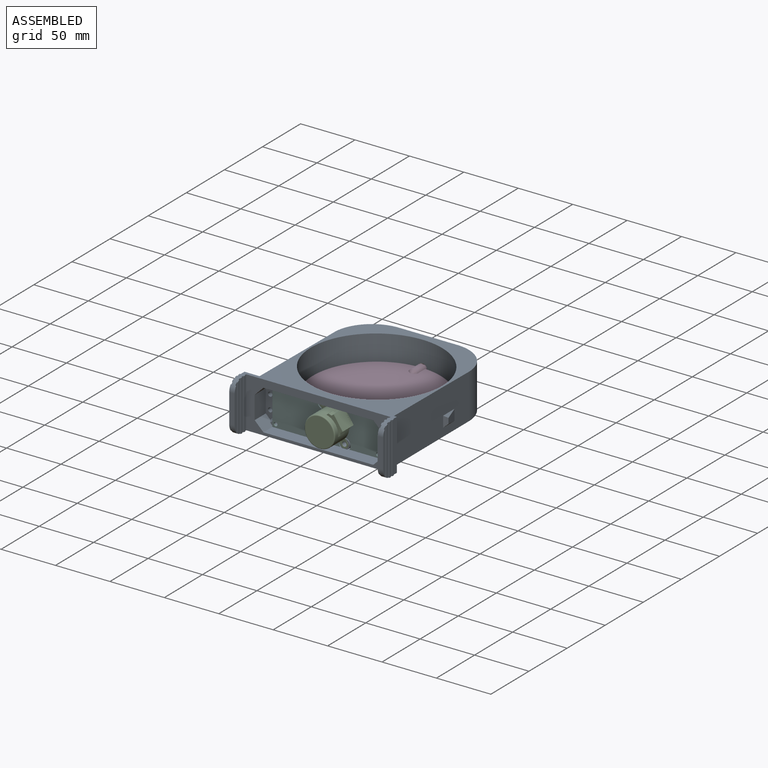
[diagram: assembled view]
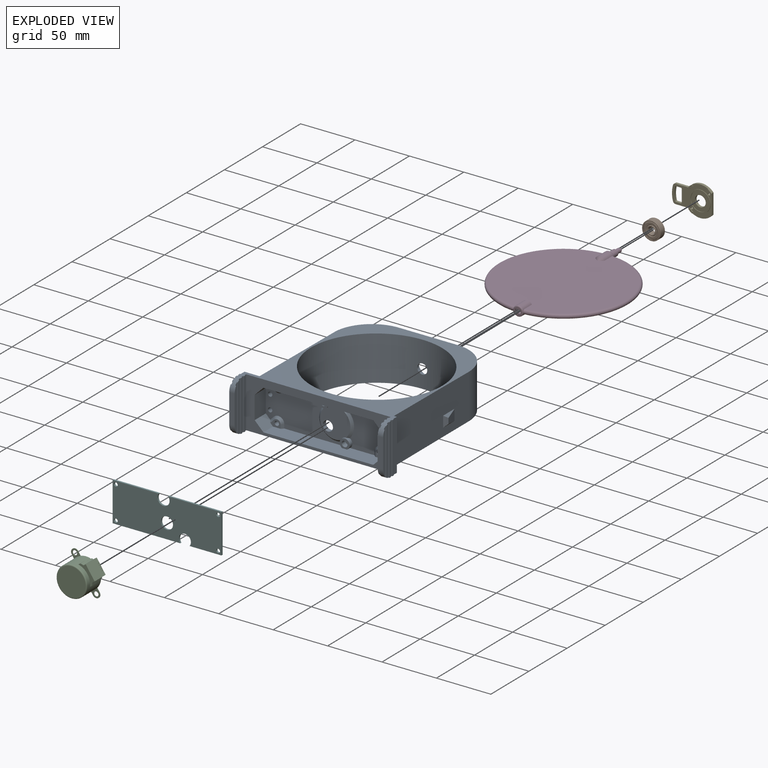
[diagram: exploded view]
GUIDED TOUR — FREECAD ASSEMBLY "Assembly"

This assembly has 6 components, labeled P0..P5 below (a component is one placed body or linked part; the same part can appear more than once), held together by 0 modeled joints plus 11 derived contact edges. A joint is a constraint between two components; its type names the relative motion it leaves free:
  CONTACT — a derived adjacency edge — the two components touch in the source model (clearance under 2% of the assembly's diagonal); it is measured from the geometry, not a modeled constraint.
Axis/direction vectors are unit vectors and 'through' points are millimeter coordinates, both in the assembly's world frame.

MATES
  1. CONTACT "contact_0_1": P0 <-> P1, contact direction (0.000, 1.000, 0.000) through (3.55, 67.40, 8.72) mm (derived from contact, not a modeled constraint)
  2. CONTACT "contact_0_2": P0 <-> P2, contact direction (1.000, 0.000, 0.000) through (4.55, -63.95, 16.32) mm (derived from contact, not a modeled constraint)
  3. CONTACT "contact_0_3": P0 <-> P3, contact direction (0.000, 1.000, 0.000) through (-4.49, 59.73, 16.14) mm (derived from contact, not a modeled constraint)
  4. CONTACT "contact_0_4": P0 <-> P4, contact direction (0.000, 1.000, 0.000) through (6.66, 67.50, 21.94) mm (derived from contact, not a modeled constraint)
  5. CONTACT "contact_0_5": P0 <-> P5, contact direction (0.000, -1.000, 0.000) through (48.84, -63.90, 36.00) mm (derived from contact, not a modeled constraint)
  6. CONTACT "contact_1_3": P1 <-> P3, contact direction (0.000, -1.000, 0.000) through (-3.08, 67.33, 16.33) mm (derived from contact, not a modeled constraint)
  7. CONTACT "contact_1_4": P1 <-> P4, contact direction (0.000, 1.000, 0.000) through (-7.44, 67.40, 12.29) mm (derived from contact, not a modeled constraint)
  8. CONTACT "contact_2_3": P2 <-> P3, contact direction (0.000, 1.000, 0.000) through (-2.53, -60.75, 17.08) mm (derived from contact, not a modeled constraint)
  9. CONTACT "contact_2_5": P2 <-> P5, contact direction (0.000, 1.000, 0.000) through (2.13, -65.50, 33.80) mm (derived from contact, not a modeled constraint)
  10. CONTACT "contact_3_4": P3 <-> P4, contact direction (0.000, 1.000, 0.000) through (2.44, 67.75, 19.67) mm (derived from contact, not a modeled constraint)
  11. CONTACT "contact_3_5": P3 <-> P5, contact direction (0.000, -1.000, 0.000) through (4.77, -61.91, 16.50) mm (derived from contact, not a modeled constraint)

ASSEMBLY ORDER
  1. P0 — the base component [order heuristic]
  2. P3 — core [order heuristic]
  3. P5 — core [order heuristic]
  4. P2 — core [order heuristic]
  5. P1 [order verified]
  6. P4 [order verified]
Order-tag legend:
  [order verified] — this step's position reverses a verified removal order: the component was checked to insert without passing through the ones already placed.
  [order heuristic] — the first 4 components form the assembly's core: parts whose collision-free extraction could not be verified, listed in mate-graph order.

Of the 6 components, 3 carry a construction recipe — the FreeCAD feature program (sketches with constraints, then the solid features that consume them) that regenerates the part from scratch, quoted from this document or from the linked companion document it references; the rest are supplied as boundary geometry only. The tour below walks the components in assembly order: each is shown spotlighted twice — in the assembled view, then in the exploded view, where a leader line traces a displaced component back to its assembled socket (components that stay in place when exploded have no leader line; saturated green if recipe-attached, orange if geometry-only; every other component desaturated gray) — followed by its recipe or geometry summary and the mates that hold it.
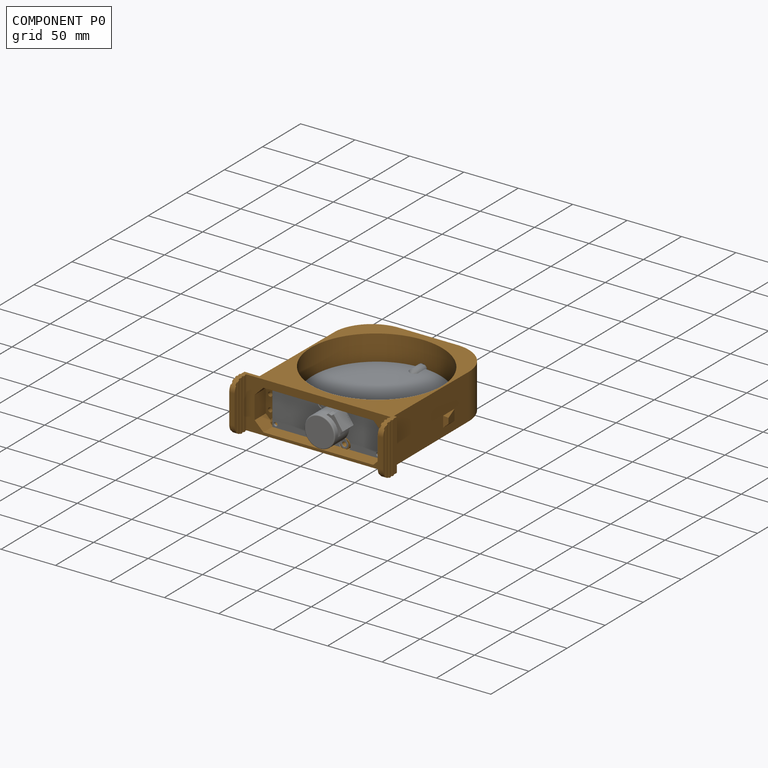
[diagram: component P0 — assembled]
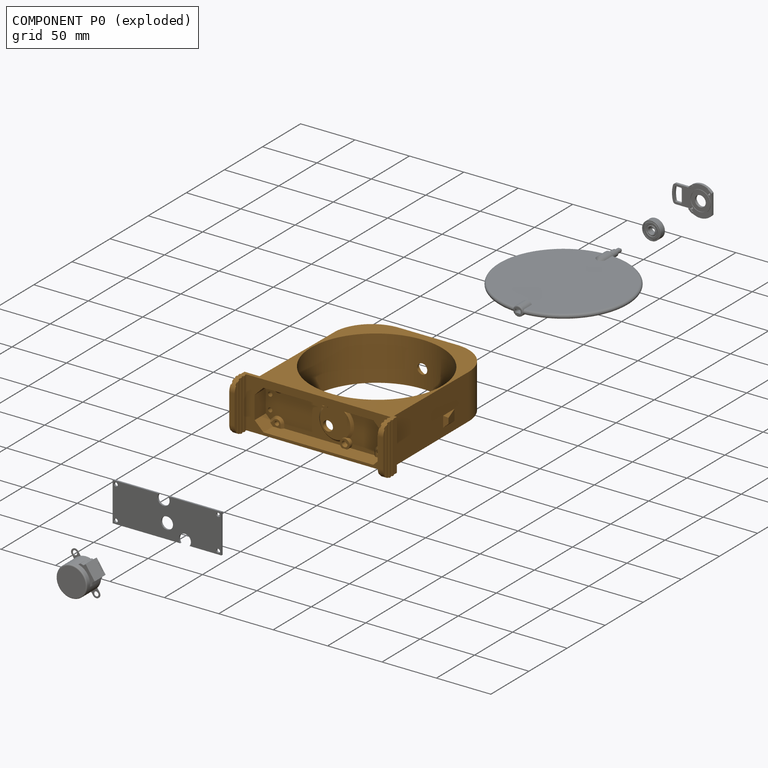
[diagram: component P0 — exploded]
COMPONENT P0 — geometry summary ("ValveBodyRefined"; its construction recipe is too large to include in this document):
  bounding box: 160.0 x 141.4 x 46.5 mm
  tessellated surface: 54,658 triangles
  volume: 193391 mm^3 (18% of its bounding box)
Held by: resting contact with P1 (derived edge); resting contact with P2 (derived edge); resting contact with P3 (derived edge); resting contact with P4 (derived edge); resting contact with P5 (derived edge).
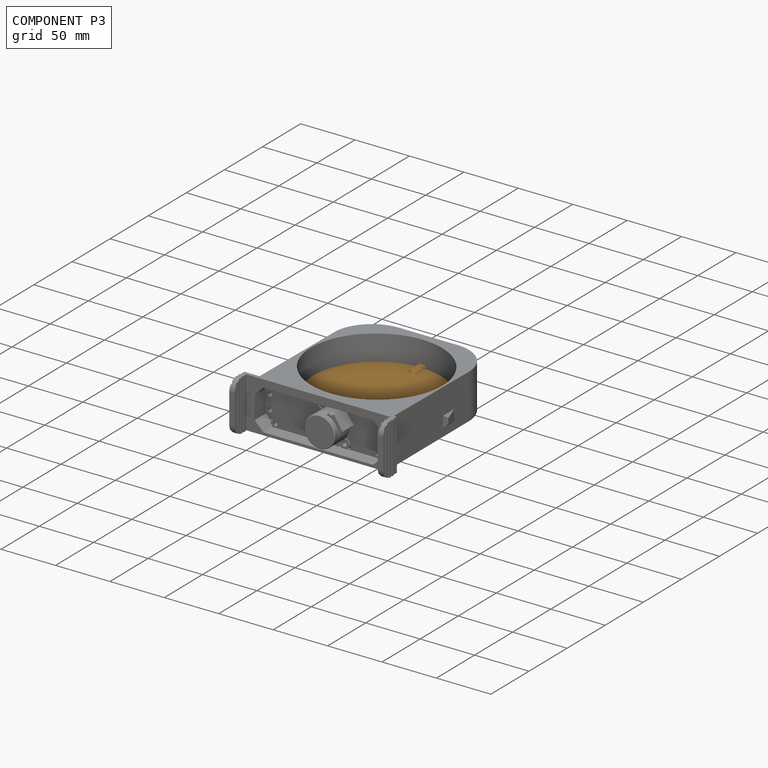
[diagram: component P3 — assembled]
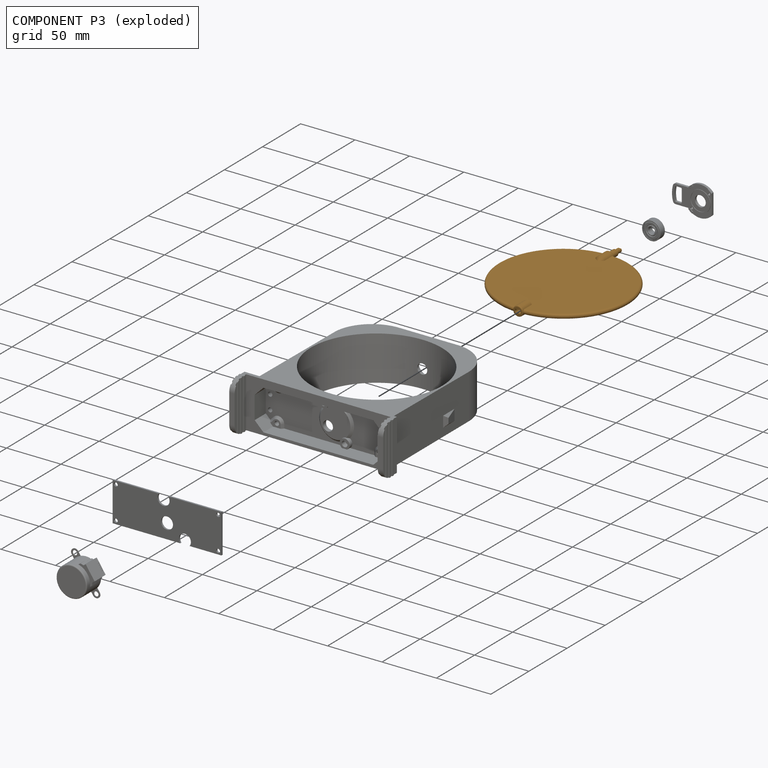
[diagram: component P3 — exploded]
COMPONENT P3 — geometry summary ("Disc"; no construction recipe available for this part):
  bounding box: 133.5 x 119.0 x 9.2 mm
  tessellated surface: 29,108 triangles
  volume: 44853 mm^3 (31% of its bounding box)
  symmetry: 2-fold rotationally symmetric about the y axis; mirror-symmetric across its x mid-plane, z mid-plane
Held by: resting contact with P0 (derived edge); resting contact with P1 (derived edge); resting contact with P2 (derived edge); resting contact with P4 (derived edge); resting contact with P5 (derived edge).
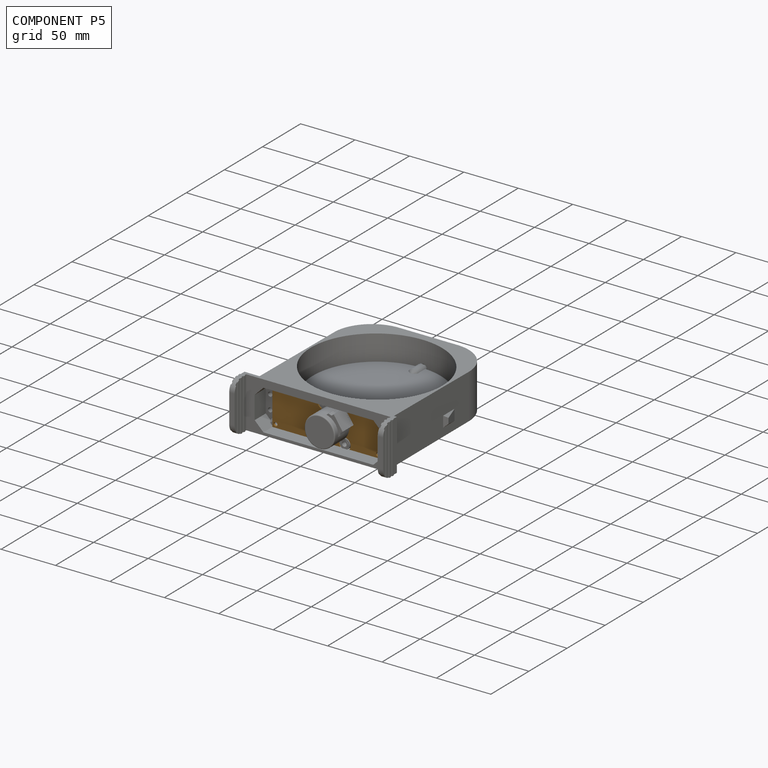
[diagram: component P5 — assembled]
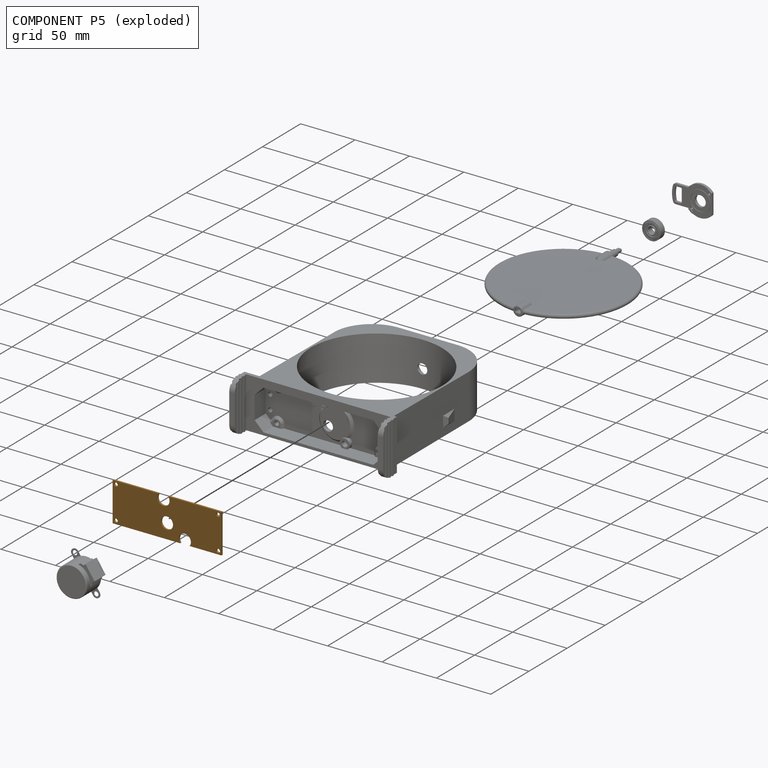
[diagram: component P5 — exploded]
COMPONENT P5 — geometry summary ("PCB"; its construction recipe is too large to include in this document):
  bounding box: 100.0 x 36.0 x 1.6 mm
  tessellated surface: 3,288 triangles
  volume: 5283 mm^3 (92% of its bounding box)
Held by: resting contact with P0 (derived edge); resting contact with P2 (derived edge); resting contact with P3 (derived edge).
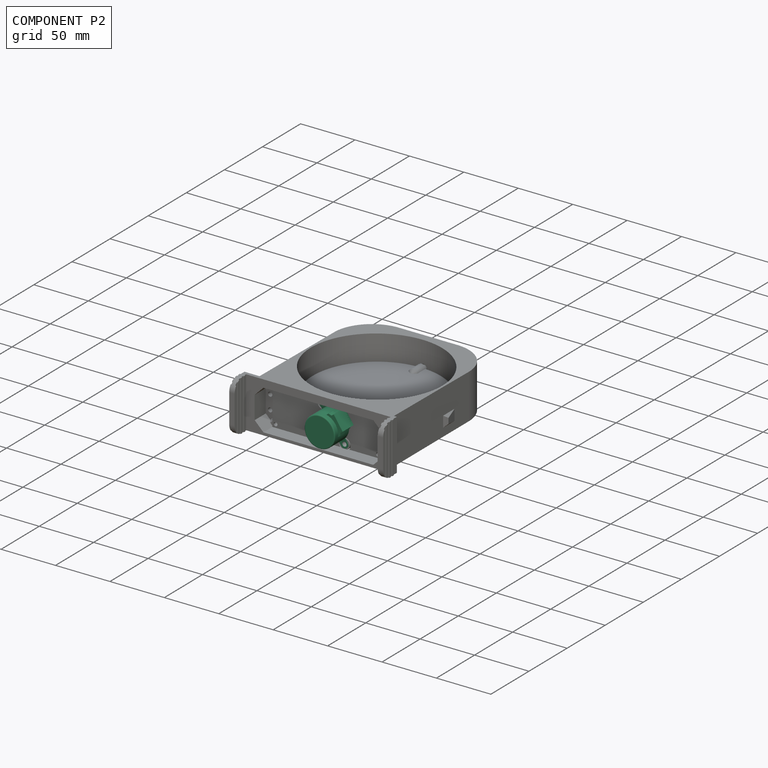
[diagram: component P2 — assembled]
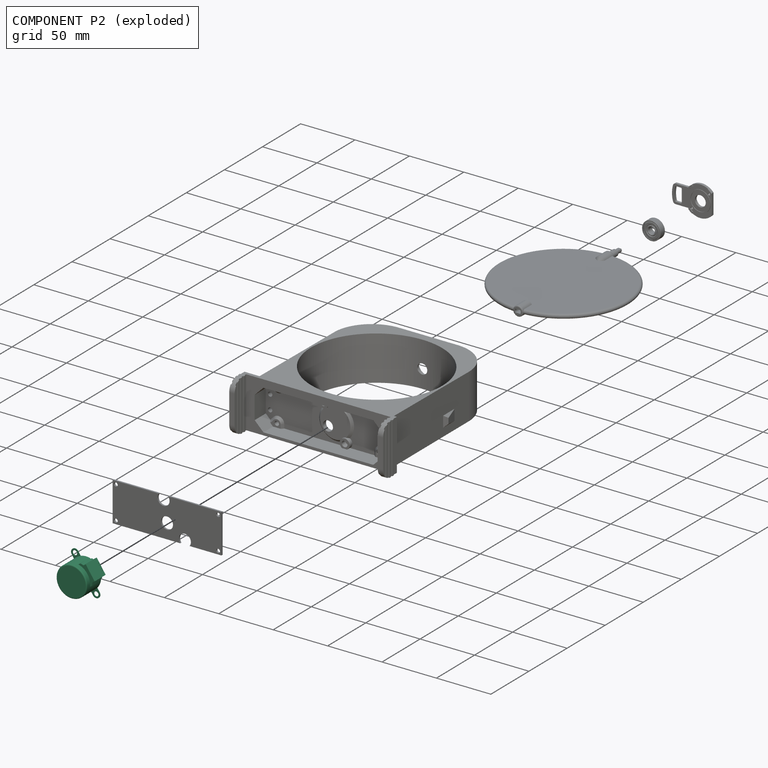
[diagram: component P2 — exploded]
COMPONENT P2 — recipe-attached ("28BYJ-48", a linked part whose construction recipe lives in a companion FreeCAD document of the same project; that document's serialized recipe follows).
Held by: resting contact with P0 (derived edge); resting contact with P3 (derived edge); resting contact with P5 (derived edge).
Construction recipe (the companion document, serialized — sketch geometry with constraints, then the solid features built on it; lengths are millimeters unless a unit is written):

FCSTD DOCUMENT  (FreeCAD 0.20R27936 (Git))
Label: 28BYJ-48
License: All rights reserved
LicenseURL: http://en.wikipedia.org/wiki/All_rights_reserved
objects: Sketcher::SketchObject×13, PartDesign::Pad×8, Part::Part2DObjectPython×5, PartDesign::Body×5, PartDesign::Pocket×4, PartDesign::Fillet×1, PartDesign::Chamfer×1, Part::MultiFuse×1
note: 52 computed .brp shape members not serialized (recipe doc carries the construction recipe); baked Part::Feature solids carry a one-line shape summary decoded from their .brp

FEATURE [Sketcher::SketchObject] Sketch  label="Master Sketch"
  FullyConstrained = true
  MapMode = 5
  sketch-geometry (53):
    g0: Circle CenterX=0 CenterY=0 CenterZ=0 NormalX=0 NormalY=0 NormalZ=1 AngleXU=0 Radius=2.5
    g1: Circle CenterX=0 CenterY=0 CenterZ=0 NormalX=0 NormalY=0 NormalZ=1 AngleXU=0 Radius=4
    g2: Circle CenterX=0 CenterY=0 CenterZ=0 NormalX=0 NormalY=0 NormalZ=1 AngleXU=0 Radius=4.5
    g3: Circle CenterX=0 CenterY=-8 CenterZ=0 NormalX=0 NormalY=0 NormalZ=1 AngleXU=0 Radius=14
    g4: Circle CenterX=-17.5 CenterY=-8 CenterZ=0 NormalX=0 NormalY=0 NormalZ=1 AngleXU=0 Radius=2.1
    g5: Circle CenterX=17.5 CenterY=-8 CenterZ=0 NormalX=0 NormalY=0 NormalZ=1 AngleXU=0 Radius=2.1
    g6: Circle CenterX=17.5 CenterY=-8 CenterZ=0 NormalX=0 NormalY=0 NormalZ=1 AngleXU=0 Radius=3.5
    g7: LineSegment StartX=17.5 StartY=-4.5 StartZ=0 EndX=13.0384 EndY=-4.5 EndZ=0
    g8: LineSegment StartX=17.5 StartY=-11.5 StartZ=0 EndX=13.0384 EndY=-11.5 EndZ=0
    g9: Circle CenterX=-17.5 CenterY=-8 CenterZ=0 NormalX=0 NormalY=0 NormalZ=1 AngleXU=0 Radius=3.5
    g10: LineSegment StartX=-17.5 StartY=-4.5 StartZ=0 EndX=-13.0384 EndY=-4.5 EndZ=0
    g11: LineSegment StartX=-17.5 StartY=-11.5 StartZ=0 EndX=-13.0384 EndY=-11.5 EndZ=0
    g12: Circle CenterX=0 CenterY=-8 CenterZ=0 NormalX=0 NormalY=0 NormalZ=1 AngleXU=0 Radius=13.5
    g13: Circle CenterX=0 CenterY=-12 CenterZ=0 NormalX=0 NormalY=0 NormalZ=1 AngleXU=0 Radius=0.5
    g14: Circle CenterX=7 CenterY=-8 CenterZ=0 NormalX=0 NormalY=0 NormalZ=1 AngleXU=0 Radius=0.5
    g15: Circle CenterX=6 CenterY=-4 CenterZ=0 NormalX=0 NormalY=0 NormalZ=1 AngleXU=0 Radius=0.5
    g16: LineSegment StartX=-17.5 StartY=-8 StartZ=0 EndX=17.5 EndY=-8 EndZ=0
    g17: LineSegment StartX=-13.9642 StartY=-7 StartZ=0 EndX=-13.4629 EndY=-7 EndZ=0
    g18: LineSegment StartX=-13.9642 StartY=-9 StartZ=0 EndX=-13.4629 EndY=-9 EndZ=0
    g19: LineSegment StartX=13.4629 StartY=-7 StartZ=0 EndX=13.9642 EndY=-7 EndZ=0
    g20: LineSegment StartX=13.4629 StartY=-9 StartZ=0 EndX=13.9642 EndY=-9 EndZ=0
    g21: LineSegment StartX=-2.5 StartY=5.77498 StartZ=0 EndX=-2.5 EndY=5.2665 EndZ=0
    g22: LineSegment StartX=2.5 StartY=5.77498 StartZ=0 EndX=2.5 EndY=5.2665 EndZ=0
    g23: LineSegment StartX=-7.3 StartY=-19.9461 StartZ=0 EndX=-7.3 EndY=-25 EndZ=0
    g24: LineSegment StartX=7.3 StartY=-19.9461 StartZ=0 EndX=7.3 EndY=-25 EndZ=0
    g25: LineSegment StartX=7.3 StartY=-25 StartZ=0 EndX=-7.3 EndY=-25 EndZ=0
    g26: LineSegment StartX=-5.8 StartY=-20.7421 StartZ=0 EndX=-5.8 EndY=-23.5 EndZ=0
    g27: LineSegment StartX=-5.8 StartY=-23.5 StartZ=0 EndX=5.8 EndY=-23.5 EndZ=0
    g28: LineSegment StartX=5.8 StartY=-23.5 StartZ=0 EndX=5.8 EndY=-20.7421 EndZ=0
    g29: LineSegment StartX=-9.51847 StartY=-18.2664 StartZ=0 EndX=-9.51847 EndY=-20.7664 EndZ=0
    g30: LineSegment StartX=-9.51847 StartY=-20.7664 StartZ=0 EndX=-7.3 EndY=-22.4731 EndZ=0
    g31: LineSegment StartX=-8.40923 StartY=-19.1931 StartZ=0 EndX=-8.40923 EndY=-20.3563 EndZ=0
    g32: LineSegment StartX=-8.40923 StartY=-20.3563 StartZ=0 EndX=-7.3 EndY=-21.2096 EndZ=0
    g33: GeomPoint X=-8.40923 Y=-21.6197 Z=0
    g34: LineSegment StartX=9.51847 StartY=-18.2664 StartZ=0 EndX=9.51847 EndY=-20.7664 EndZ=0
    g35: LineSegment StartX=9.51847 StartY=-20.7664 StartZ=0 EndX=7.3 EndY=-22.4731 EndZ=0
    g36: LineSegment StartX=8.40923 StartY=-19.1931 StartZ=0 EndX=8.40923 EndY=-20.3563 EndZ=0
    g37: LineSegment StartX=8.40923 StartY=-20.3563 StartZ=0 EndX=7.3 EndY=-21.2096 EndZ=0
    g38: Circle CenterX=0 CenterY=-8 CenterZ=0 NormalX=0 NormalY=0 NormalZ=1 AngleXU=0 Radius=13
    g39: LineSegment StartX=0 StartY=-8 StartZ=0 EndX=-9.51847 EndY=1.57333 EndZ=0
    g40: LineSegment StartX=0 StartY=-8 StartZ=0 EndX=-10.8743 EndY=0 EndZ=0
    g41: GeomPoint X=-10.4715 Y=-0.296296 Z=0
    g42: GeomPoint X=-9.16593 Y=1.21877 Z=0
    g43: LineSegment StartX=9.16593 StartY=1.21877 StartZ=0 EndX=9.51847 EndY=1.57333 EndZ=0
    g44: LineSegment StartX=10.4715 StartY=-0.296296 StartZ=0 EndX=10.8743 EndY=0 EndZ=0
    g45: LineSegment StartX=-9.51847 StartY=1.57333 StartZ=0 EndX=-9.16593 EndY=1.21877 EndZ=0
    g46: LineSegment StartX=-10.8743 StartY=0 StartZ=0 EndX=-10.4715 EndY=-0.296296 EndZ=0
    g47: LineSegment StartX=-10.8743 StartY=-16 StartZ=0 EndX=-10.4715 EndY=-15.7037 EndZ=0
    g48: LineSegment StartX=-9.51847 StartY=-17.5733 StartZ=0 EndX=-9.16593 EndY=-17.2188 EndZ=0
    g49: LineSegment StartX=9.16593 StartY=-17.2188 StartZ=0 EndX=9.51847 EndY=-17.5733 EndZ=0
    g50: LineSegment StartX=10.4715 StartY=-15.7037 StartZ=0 EndX=10.8743 EndY=-16 EndZ=0
    g51: LineSegment StartX=-9.16593 StartY=-18.5823 StartZ=0 EndX=-9.16593 EndY=-17.9114 EndZ=0
    g52: LineSegment StartX=9.16593 StartY=-17.9114 StartZ=0 EndX=9.16593 EndY=-18.5823 EndZ=0
  constraints (138):
    c: Coincident(g0,g-1)
    c: Coincident(g1,g0)
    c: Coincident(g2,g0)
    c: Diameter(g0) = 5
    c: Diameter(g1) = 8
    c: Diameter(g2) = 9
    c: PointOnObject(g3,g-2)
    c: Diameter(g3) = 28
    c: DistanceY(g3,g0) = 8
    c: Symmetric(g5,g4,g-2)
    c: Equal(g5,g4)
    c: Diameter(g4) = 4.2
    c: DistanceX(g4,g5) = 35
    c: Horizontal(g5,g3)
    c: Coincident(g6,g5)
    c: Horizontal(g7)
    c: PointOnObject(g8,g6)
    c: Horizontal(g8)
    c: Tangent(g8,g6)
    c: Tangent(g7,g6) = -1.5708
    c: DistanceY(g8,g7) = 7
    c: Coincident(g9,g4)
    c: Equal(g9,g6)
    c: Symmetric(g11,g8,g-2)
    c: Symmetric(g10,g7,g-2)
    c: Symmetric(g10,g7,g-2)
    c: Symmetric(g8,g11,g-2)
    c: Coincident(g12,g3)
    c: Diameter(g12) = 27
    c: PointOnObject(g7,g12)
    c: PointOnObject(g8,g12)
    c: PointOnObject(g13,g-2)
    c: Diameter(g15) = 1
    c: Equal(g15,g14)
    c: Equal(g14,g13)
    c: DistanceY(g13,g3) = 4
    c: DistanceX(g3,g14) = 7
    c: Horizontal(g14,g3)
    c: DistanceY(g14,g15) = 4
    c: DistanceX(g15,g14) = 1
    c: Coincident(g16,g4)
    c: Coincident(g16,g5)
    c: PointOnObject(g17,g3)
    c: PointOnObject(g17,g12)
    c: Horizontal(g17)
    c: PointOnObject(g18,g3)
    c: Horizontal(g18)
    c: Symmetric(g17,g18,g16)
    c: DistanceY(g18,g17) = 2
    c: PointOnObject(g19,g3)
    c: Horizontal(g19)
    c: PointOnObject(g20,g3)
    c: Horizontal(g20)
    c: Symmetric(g20,g18,g-2)
    c: Symmetric(g19,g20,g16)
    c: PointOnObject(g21,g3)
    c: PointOnObject(g21,g12)
    c: Vertical(g21)
    c: PointOnObject(g22,g3)
    c: Vertical(g22)
    c: Symmetric(g22,g21,g-2)
    c: DistanceX(g21,g22) = 5
    c: PointOnObject(g23,g3)
    c: Vertical(g23)
    c: PointOnObject(g24,g3)
    c: Vertical(g24)
    c: Coincident(g25,g24)
    c: Coincident(g25,g23)
    c: DistanceX(g25,g25) = 14.6
    c: Symmetric(g23,g24,g-2)
    c: DistanceY(g23,g3) = 17
    c: PointOnObject(g26,g3)
    c: Vertical(g26)
    c: Coincident(g27,g26)
    c: Coincident(g28,g27)
    c: PointOnObject(g28,g3)
    c: Vertical(g28)
    c: DistanceX(g23,g26) = 1.5
    c: DistanceY(g23,g26) = 1.5
    c: Symmetric(g26,g27,g-2)
    c: PointOnObject(g29,g3)
    c: Coincident(g30,g29)
    c: Vertical(g29)
    c: DistanceY(g29,g29) = 2.5
    c: PointOnObject(g31,g3)
    c: Vertical(g31)
    c: Coincident(g32,g31)
    c: Parallel(g30,g32)
    c: Symmetric(g30,g29,g33)
    c: Vertical(g33,g31)
    c: Symmetric(g23,g23,g30)
    c: Symmetric(g30,g23,g32)
    c: PointOnObject(g34,g3)
    c: Vertical(g34)
    c: Coincident(g35,g34)
    c: PointOnObject(g36,g3)
    c: Vertical(g36)
    c: Coincident(g37,g36)
    c: Symmetric(g37,g32,g-2)
    c: Symmetric(g35,g30,g-2)
    c: Symmetric(g36,g31,g-2)
    c: Symmetric(g34,g29,g-2)
    c: Coincident(g38,g3)
    c: Diameter(g38) = 26
    c: Coincident(g39,g3)
    c: PointOnObject(g39,g12)
    c: Coincident(g40,g3)
    c: PointOnObject(g40,g12)
    c: PointOnObject(g41,g38)
    c: PointOnObject(g41,g40)
    c: PointOnObject(g42,g38)
    c: PointOnObject(g42,g39)
    c: Distance(g41,g42) = 2
    c: Horizontal(g0,g40)
    c: Symmetric(g44,g41,g-2)
    c: Symmetric(g44,g40,g-2)
    c: Symmetric(g43,g42,g-2)
    c: Symmetric(g43,g39,g-2)
    c: Coincident(g45,g39)
    c: Coincident(g45,g42)
    c: Coincident(g46,g40)
    c: Coincident(g46,g41)
    c: Symmetric(g50,g44,g16)
    c: Symmetric(g44,g50,g16)
    c: Symmetric(g49,g43,g16)
    c: Symmetric(g49,g43,g16)
    c: Symmetric(g47,g46,g16)
    c: Symmetric(g47,g46,g16)
    c: Symmetric(g48,g45,g16)
    c: Symmetric(g45,g48,g16)
    c: Vertical(g29,g48)
    c: PointOnObject(g51,g3)
    c: PointOnObject(g51,g12)
    c: Vertical(g51)
    c: PointOnObject(g52,g12)
    c: Vertical(g52)
    c: Symmetric(g52,g51,g-2)
    c: Vertical(g51,g48)
FEATURE [Part::Part2DObjectPython] Clone2D  label="Master Sketch (2D)"  # Draft 2D object (typed FeaturePython)
  Fuse = false
  Objects = -> [Sketch]
  Scale = (1,1,1)
FEATURE [Sketcher::SketchObject] Sketch001
  ExternalGeometry = -> [Clone2D]
  FullyConstrained = true
  MapMode = 5
  Support = -> [XY_Plane]
  sketch-geometry (50):
    g0: Circle CenterX=0 CenterY=0 CenterZ=0 NormalX=0 NormalY=0 NormalZ=1 AngleXU=0 Radius=4.5
    g1: Circle CenterX=6 CenterY=-4 CenterZ=0 NormalX=0 NormalY=0 NormalZ=1 AngleXU=0 Radius=0.5
    g2: Circle CenterX=7 CenterY=-8 CenterZ=0 NormalX=0 NormalY=0 NormalZ=1 AngleXU=0 Radius=0.5
    g3: Circle CenterX=0 CenterY=-12 CenterZ=0 NormalX=0 NormalY=0 NormalZ=1 AngleXU=0 Radius=0.5
    g4: Circle CenterX=17.5 CenterY=-8 CenterZ=0 NormalX=0 NormalY=0 NormalZ=1 AngleXU=0 Radius=2.1
    g5: Circle CenterX=-17.5 CenterY=-8 CenterZ=0 NormalX=0 NormalY=0 NormalZ=1 AngleXU=0 Radius=2.1
    g6: LineSegment StartX=-13.9642 StartY=-7 StartZ=0 EndX=-13.4629 EndY=-7 EndZ=0
    g7: LineSegment StartX=-13.9642 StartY=-9 StartZ=0 EndX=-13.4629 EndY=-9 EndZ=0
    g8: LineSegment StartX=13.4629 StartY=-7 StartZ=0 EndX=13.9642 EndY=-7 EndZ=0
    g9: LineSegment StartX=13.4629 StartY=-9 StartZ=0 EndX=13.9642 EndY=-9 EndZ=0
    g10: LineSegment StartX=-17.5 StartY=-4.5 StartZ=0 EndX=-13.0384 EndY=-4.5 EndZ=0
    g11: LineSegment StartX=-17.5 StartY=-11.5 StartZ=0 EndX=-13.0384 EndY=-11.5 EndZ=0
    g12: LineSegment StartX=17.5 StartY=-11.5 StartZ=0 EndX=13.0384 EndY=-11.5 EndZ=0
    g13: LineSegment StartX=13.0384 StartY=-4.5 StartZ=0 EndX=17.5 EndY=-4.5 EndZ=0
    g14: LineSegment StartX=-2.5 StartY=5.2665 StartZ=0 EndX=-2.5 EndY=5.77498 EndZ=0
    g15: LineSegment StartX=2.5 StartY=5.77498 StartZ=0 EndX=2.5 EndY=5.2665 EndZ=0
    g16: LineSegment StartX=-9.51847 StartY=1.57333 StartZ=0 EndX=-9.16593 EndY=1.21877 EndZ=0
    g17: LineSegment StartX=-10.8743 StartY=0 StartZ=0 EndX=-10.4715 EndY=-0.296296 EndZ=0
    g18: LineSegment StartX=9.16593 StartY=1.21877 StartZ=0 EndX=9.51847 EndY=1.57333 EndZ=0
    g19: LineSegment StartX=10.4715 StartY=-0.296296 StartZ=0 EndX=10.8743 EndY=0 EndZ=0
    g20: LineSegment StartX=10.4715 StartY=-15.7037 StartZ=0 EndX=10.8743 EndY=-16 EndZ=0
    g21: LineSegment StartX=9.16593 StartY=-17.2188 StartZ=0 EndX=9.51847 EndY=-17.5733 EndZ=0
    g22: LineSegment StartX=-10.8743 StartY=-16 StartZ=0 EndX=-10.4715 EndY=-15.7037 EndZ=0
    g23: LineSegment StartX=-9.16593 StartY=-17.2188 StartZ=0 EndX=-9.51847 EndY=-17.5733 EndZ=0
    g24: ArcOfCircle CenterX=5.7e-15 CenterY=-8 CenterZ=0 NormalX=0 NormalY=0 NormalZ=1 AngleXU=0 Radius=13.5 StartAngle=0.788272 EndAngle=1.38454
    g25: ArcOfCircle CenterX=5.7e-15 CenterY=-8 CenterZ=0 NormalX=0 NormalY=0 NormalZ=1 AngleXU=0 Radius=13 StartAngle=0.634274 EndAngle=0.788272
    g26: ArcOfCircle CenterX=5.7e-15 CenterY=-8 CenterZ=0 NormalX=0 NormalY=0 NormalZ=1 AngleXU=0 Radius=13.5 StartAngle=0.262255 EndAngle=0.634274
    g27: ArcOfCircle CenterX=17.5 CenterY=-8 CenterZ=0 NormalX=0 NormalY=0 NormalZ=1 AngleXU=0 Radius=3.5 StartAngle=4.71239 EndAngle=7.85398
    g28: ArcOfCircle CenterX=5.7e-15 CenterY=-8 CenterZ=0 NormalX=0 NormalY=0 NormalZ=1 AngleXU=0 Radius=14 StartAngle=6.2117 EndAngle=6.35467
    g29: ArcOfCircle CenterX=5.7e-15 CenterY=-8 CenterZ=0 NormalX=0 NormalY=0 NormalZ=1 AngleXU=0 Radius=13.5 StartAngle=6.20904 EndAngle=6.35733
    g30: ArcOfCircle CenterX=5.7e-15 CenterY=-8 CenterZ=0 NormalX=0 NormalY=0 NormalZ=1 AngleXU=0 Radius=13.5 StartAngle=3.06745 EndAngle=3.21573
    g31: ArcOfCircle CenterX=5.7e-15 CenterY=-8 CenterZ=0 NormalX=0 NormalY=0 NormalZ=1 AngleXU=0 Radius=14 StartAngle=3.0701 EndAngle=3.21308
    g32: ArcOfCircle CenterX=-17.5 CenterY=-8 CenterZ=0 NormalX=0 NormalY=0 NormalZ=1 AngleXU=0 Radius=3.5 StartAngle=1.5708 EndAngle=4.71239
    g33: ArcOfCircle CenterX=5.7e-15 CenterY=-8 CenterZ=0 NormalX=0 NormalY=0 NormalZ=1 AngleXU=0 Radius=14 StartAngle=1.39126 EndAngle=1.75033
    g34: ArcOfCircle CenterX=5.7e-15 CenterY=-8 CenterZ=0 NormalX=0 NormalY=0 NormalZ=1 AngleXU=0 Radius=13.5 StartAngle=1.75706 EndAngle=2.35332
    g35: ArcOfCircle CenterX=5.7e-15 CenterY=-8 CenterZ=0 NormalX=0 NormalY=0 NormalZ=1 AngleXU=0 Radius=13 StartAngle=2.35332 EndAngle=2.50732
    g36: ArcOfCircle CenterX=5.7e-15 CenterY=-8 CenterZ=0 NormalX=0 NormalY=0 NormalZ=1 AngleXU=0 Radius=13.5 StartAngle=2.50732 EndAngle=2.87934
    g37: ArcOfCircle CenterX=5.7e-15 CenterY=-8 CenterZ=0 NormalX=0 NormalY=0 NormalZ=1 AngleXU=0 Radius=13.5 StartAngle=3.40385 EndAngle=3.77587
    g38: ArcOfCircle CenterX=5.7e-15 CenterY=-8 CenterZ=0 NormalX=0 NormalY=0 NormalZ=1 AngleXU=0 Radius=13 StartAngle=3.77587 EndAngle=3.92986
    g39: ArcOfCircle CenterX=5.7e-15 CenterY=-8 CenterZ=0 NormalX=0 NormalY=0 NormalZ=1 AngleXU=0 Radius=13.5 StartAngle=3.92986 EndAngle=3.96605
    g40: ArcOfCircle CenterX=5.7e-15 CenterY=-8 CenterZ=0 NormalX=0 NormalY=0 NormalZ=1 AngleXU=0 Radius=13.5 StartAngle=5.64891 EndAngle=6.02093
    g41: ArcOfCircle CenterX=5.7e-15 CenterY=-8 CenterZ=0 NormalX=0 NormalY=0 NormalZ=1 AngleXU=0 Radius=13 StartAngle=5.49491 EndAngle=5.64891
    g42: LineSegment StartX=9.16593 StartY=-17.9114 StartZ=0 EndX=9.16593 EndY=-18.5823 EndZ=0
    g43: ArcOfCircle CenterX=5.7e-15 CenterY=-8 CenterZ=0 NormalX=0 NormalY=0 NormalZ=1 AngleXU=0 Radius=13.5 StartAngle=5.45873 EndAngle=5.49491
    g44: ArcOfCircle CenterX=5.7e-15 CenterY=-8 CenterZ=0 NormalX=0 NormalY=0 NormalZ=1 AngleXU=0 Radius=14 StartAngle=5.13955 EndAngle=5.42619
    g45: ArcOfCircle CenterX=5.7e-15 CenterY=-8 CenterZ=0 NormalX=0 NormalY=0 NormalZ=1 AngleXU=0 Radius=14 StartAngle=3.99859 EndAngle=4.28523
    g46: LineSegment StartX=-9.16593 StartY=-18.5823 StartZ=0 EndX=-9.16593 EndY=-17.9114 EndZ=0
    g47: LineSegment StartX=-5.8 StartY=-20.7421 StartZ=0 EndX=-5.8 EndY=-23.5 EndZ=0
    g48: LineSegment StartX=-5.8 StartY=-23.5 StartZ=0 EndX=5.8 EndY=-23.5 EndZ=0
    g49: LineSegment StartX=5.8 StartY=-23.5 StartZ=0 EndX=5.8 EndY=-20.7421 EndZ=0
  constraints (121):
    c: Coincident(g0,g-28)
    c: Equal(g-28,g0)
    c: Coincident(g1,g-29)
    c: Equal(g1,g-29)
    c: Coincident(g2,g-30)
    c: Equal(g-30,g2)
    c: Coincident(g3,g-31)
    c: Equal(g-31,g3)
    c: Coincident(g4,g-26)
    c: Equal(g-26,g4)
    c: Coincident(g5,g-17)
    c: Equal(g-17,g5)
    c: Coincident(g6,g-15)
    c: Coincident(g6,g-15)
    c: Coincident(g7,g-16)
    c: Coincident(g7,g-16)
    c: Coincident(g8,g-25)
    c: Coincident(g8,g-25)
    c: Coincident(g9,g-24)
    c: Coincident(g9,g-24)
    c: Coincident(g10,g-12)
    c: Coincident(g10,g-12)
    c: Coincident(g11,g-14)
    c: Coincident(g11,g-14)
    c: Coincident(g12,g-22)
    c: Coincident(g12,g-22)
    c: Coincident(g13,g-27)
    c: Coincident(g13,g-27)
    c: Coincident(g14,g-6)
    c: Coincident(g14,g-6)
    c: Coincident(g15,g-7)
    c: Coincident(g15,g-7)
    c: Coincident(g16,g-10)
    c: Coincident(g16,g-10)
    c: Coincident(g17,g-11)
    c: Coincident(g17,g-11)
    c: Coincident(g18,g-8)
    c: Coincident(g18,g-8)
    c: Coincident(g19,g-9)
    c: Coincident(g19,g-9)
    c: Coincident(g20,g-21)
    c: Coincident(g20,g-21)
    c: Coincident(g21,g-20)
    c: Coincident(g21,g-20)
    c: Coincident(g22,g-18)
    c: Coincident(g22,g-18)
    c: Coincident(g23,g-19)
    c: Coincident(g23,g-19)
    c: Coincident(g24,g-5)
    c: Coincident(g24,g18)
    c: Coincident(g24,g15)
    c: Coincident(g25,g24)
    c: Coincident(g25,g18)
    c: Coincident(g25,g19)
    c: Coincident(g26,g24)
    c: Coincident(g26,g19)
    c: Coincident(g26,g13)
    c: Coincident(g27,g4)
    c: Coincident(g27,g13)
    c: Coincident(g27,g12)
    c: Coincident(g28,g24)
    c: Coincident(g28,g8)
    c: Coincident(g28,g9)
    c: Coincident(g29,g24)
    c: Coincident(g29,g8)
    c: Coincident(g29,g9)
    c: Coincident(g30,g24)
    c: Coincident(g30,g7)
    c: Coincident(g30,g6)
    c: Coincident(g31,g24)
    c: Coincident(g31,g7)
    c: Coincident(g31,g6)
    c: Coincident(g32,g5)
    c: Coincident(g32,g11)
    c: Coincident(g32,g10)
    c: Coincident(g33,g24)
    c: Coincident(g33,g15)
    c: Coincident(g33,g14)
    c: Coincident(g34,g24)
    c: Coincident(g34,g14)
    c: Coincident(g34,g16)
    c: Coincident(g35,g24)
    c: Coincident(g35,g16)
    c: Coincident(g35,g17)
    c: Coincident(g36,g24)
    c: Coincident(g36,g17)
    c: Coincident(g36,g10)
    c: Coincident(g37,g24)
    c: Coincident(g37,g11)
    c: Coincident(g37,g22)
    c: Coincident(g38,g24)
    c: Coincident(g38,g22)
    c: Coincident(g38,g23)
    c: Coincident(g39,g24)
    c: Coincident(g39,g23)
    c: Coincident(g39,g-35)
    c: Coincident(g40,g24)
    c: Coincident(g40,g12)
    c: Coincident(g40,g20)
    c: Coincident(g41,g24)
    c: Coincident(g41,g20)
    c: Coincident(g41,g21)
    c: Coincident(g42,g-36)
    c: Coincident(g42,g-36)
    c: Coincident(g43,g24)
    c: Coincident(g43,g21)
    c: Coincident(g43,g42)
    c: Coincident(g44,g24)
    c: Coincident(g44,g42)
    c: Coincident(g44,g-34)
    c: Coincident(g45,g24)
    c: Coincident(g45,g-32)
    c: Coincident(g45,g-35)
    c: Coincident(g46,g45)
    c: Coincident(g46,g39)
    c: Coincident(g47,g45)
    c: Coincident(g47,g-33)
    c: Coincident(g48,g47)
    c: Coincident(g48,g-34)
    c: Coincident(g49,g48)
    c: Coincident(g49,g44)
FEATURE [PartDesign::Pad] Pad
  Direction = (0,0,1)
  Length = 0.5
  Length2 = 10
  Profile = -> Sketch001
  ReferenceAxis = -> Sketch001 [N_Axis]
  Type = 0
FEATURE [PartDesign::Body] Body  label="Part 1"
  Group = -> [Sketch001,Clone2D,Pad]
  Origin = -> Origin
  Tip = -> Pad
FEATURE [Part::Part2DObjectPython] Clone2D001  label="Master Sketch (2D)001"  # Draft 2D object (typed FeaturePython)
  Fuse = false
  Objects = -> [Sketch]
  Scale = (1,1,1)
FEATURE [Sketcher::SketchObject] Sketch002
  ExternalGeometry = -> [Clone2D001]
  FullyConstrained = true
  MapMode = 5
  Support = -> [XY_Plane001]
  sketch-geometry (1):
    g0: Circle CenterX=0 CenterY=-8 CenterZ=0 NormalX=0 NormalY=0 NormalZ=1 AngleXU=0 Radius=14
  constraints (2):
    c: Coincident(g0,g-3)
    c: Equal(g-3,g0)
FEATURE [PartDesign::Pad] Pad001
  Direction = (0,0,1)
  Length = 18.5
  Length2 = 10
  Profile = -> Sketch002
  ReferenceAxis = -> Sketch002 [N_Axis]
  Reversed = true
  Type = 0
FEATURE [Sketcher::SketchObject] Sketch003
  ExternalGeometry = -> [Clone2D001]
  FullyConstrained = true
  MapMode = 5
  Support = -> [XY_Plane001]
  sketch-geometry (43):
    g0: Circle CenterX=0 CenterY=-12 CenterZ=0 NormalX=0 NormalY=0 NormalZ=1 AngleXU=0 Radius=0.5
    g1: Circle CenterX=7 CenterY=-8 CenterZ=0 NormalX=0 NormalY=0 NormalZ=1 AngleXU=0 Radius=0.5
    g2: Circle CenterX=6 CenterY=-4 CenterZ=0 NormalX=0 NormalY=0 NormalZ=1 AngleXU=0 Radius=0.5
    g3: ArcOfCircle CenterX=0 CenterY=-8 CenterZ=0 NormalX=0 NormalY=0 NormalZ=1 AngleXU=0 Radius=13.5 StartAngle=2.50732 EndAngle=2.87934
    g4: ArcOfCircle CenterX=0 CenterY=-8 CenterZ=0 NormalX=0 NormalY=0 NormalZ=1 AngleXU=0 Radius=13 StartAngle=2.35332 EndAngle=2.50732
    g5: ArcOfCircle CenterX=0 CenterY=-8 CenterZ=0 NormalX=0 NormalY=0 NormalZ=1 AngleXU=0 Radius=13.5 StartAngle=1.75706 EndAngle=2.35332
    g6: LineSegment StartX=-13.0384 StartY=-4.5 StartZ=0 EndX=-13.5554 EndY=-4.5 EndZ=0
    g7: ArcOfCircle CenterX=0 CenterY=-8 CenterZ=0 NormalX=0 NormalY=0 NormalZ=1 AngleXU=0 Radius=14 StartAngle=1.75033 EndAngle=2.88891
    g8: LineSegment StartX=-10.8743 StartY=1.8e-15 StartZ=0 EndX=-10.4715 EndY=-0.296296 EndZ=0
    g9: LineSegment StartX=-9.16593 StartY=1.21877 StartZ=0 EndX=-9.51847 EndY=1.57333 EndZ=0
    g10: LineSegment StartX=-2.5 StartY=5.2665 StartZ=0 EndX=-2.5 EndY=5.77498 EndZ=0
    g11: LineSegment StartX=-13.9642 StartY=-7 StartZ=0 EndX=-13.4629 EndY=-7 EndZ=0
    g12: LineSegment StartX=-13.9642 StartY=-9 StartZ=0 EndX=-13.4629 EndY=-9 EndZ=0
    g13: ArcOfCircle CenterX=0 CenterY=-8 CenterZ=0 NormalX=0 NormalY=0 NormalZ=1 AngleXU=0 Radius=13.5 StartAngle=3.06745 EndAngle=3.21573
    g14: ArcOfCircle CenterX=0 CenterY=-8 CenterZ=0 NormalX=0 NormalY=0 NormalZ=1 AngleXU=0 Radius=14 StartAngle=3.0701 EndAngle=3.21308
    g15: LineSegment StartX=-9.16593 StartY=-18.5823 StartZ=0 EndX=-9.16593 EndY=-17.9114 EndZ=0
    g16: ArcOfCircle CenterX=0 CenterY=-8 CenterZ=0 NormalX=0 NormalY=0 NormalZ=1 AngleXU=0 Radius=13.5 StartAngle=3.92986 EndAngle=3.96605
    g17: LineSegment StartX=-9.51847 StartY=-17.5733 StartZ=0 EndX=-9.16593 EndY=-17.2188 EndZ=0
    g18: ArcOfCircle CenterX=0 CenterY=-8 CenterZ=0 NormalX=0 NormalY=0 NormalZ=1 AngleXU=0 Radius=13 StartAngle=3.77587 EndAngle=3.92986
    g19: LineSegment StartX=-10.4715 StartY=-15.7037 StartZ=0 EndX=-10.8743 EndY=-16 EndZ=0
    g20: ArcOfCircle CenterX=0 CenterY=-8 CenterZ=0 NormalX=0 NormalY=0 NormalZ=1 AngleXU=0 Radius=13.5 StartAngle=3.40385 EndAngle=3.77587
    g21: LineSegment StartX=-13.0384 StartY=-11.5 StartZ=0 EndX=-13.5554 EndY=-11.5 EndZ=0
    g22: ArcOfCircle CenterX=0 CenterY=-8 CenterZ=0 NormalX=0 NormalY=0 NormalZ=1 AngleXU=0 Radius=14 StartAngle=3.39427 EndAngle=3.99859
    g23: LineSegment StartX=2.5 StartY=5.77498 StartZ=0 EndX=2.5 EndY=5.2665 EndZ=0
    g24: LineSegment StartX=9.16593 StartY=1.21877 StartZ=0 EndX=9.51847 EndY=1.57333 EndZ=0
    g25: LineSegment StartX=10.4715 StartY=-0.296296 StartZ=0 EndX=10.8743 EndY=0 EndZ=0
    g26: LineSegment StartX=13.0384 StartY=-4.5 StartZ=0 EndX=13.5554 EndY=-4.5 EndZ=0
    g27: LineSegment StartX=13.0384 StartY=-11.5 StartZ=0 EndX=13.5554 EndY=-11.5 EndZ=0
    g28: ArcOfCircle CenterX=0 CenterY=-8 CenterZ=0 NormalX=0 NormalY=0 NormalZ=1 AngleXU=0 Radius=14 StartAngle=0.25268 EndAngle=1.39126
    g29: ArcOfCircle CenterX=0 CenterY=-8 CenterZ=0 NormalX=0 NormalY=0 NormalZ=1 AngleXU=0 Radius=13.5 StartAngle=0.788272 EndAngle=1.38454
    g30: ArcOfCircle CenterX=0 CenterY=-8 CenterZ=0 NormalX=0 NormalY=0 NormalZ=1 AngleXU=0 Radius=13.5 StartAngle=0.262255 EndAngle=0.634274
    g31: ArcOfCircle CenterX=0 CenterY=-8 CenterZ=0 NormalX=0 NormalY=0 NormalZ=1 AngleXU=0 Radius=13 StartAngle=0.634274 EndAngle=0.788272
    g32: ArcOfCircle CenterX=0 CenterY=-8 CenterZ=0 NormalX=0 NormalY=0 NormalZ=1 AngleXU=0 Radius=13.5 StartAngle=6.20904 EndAngle=6.35733
    g33: ArcOfCircle CenterX=0 CenterY=-8 CenterZ=0 NormalX=0 NormalY=0 NormalZ=1 AngleXU=0 Radius=14 StartAngle=6.2117 EndAngle=6.35467
    g34: LineSegment StartX=13.4629 StartY=-7 StartZ=0 EndX=13.9642 EndY=-7 EndZ=0
    g35: LineSegment StartX=13.4629 StartY=-9 StartZ=0 EndX=13.9642 EndY=-9 EndZ=0
    g36: ArcOfCircle CenterX=0 CenterY=-8 CenterZ=0 NormalX=0 NormalY=0 NormalZ=1 AngleXU=0 Radius=14 StartAngle=5.42619 EndAngle=6.03051
    g37: ArcOfCircle CenterX=0 CenterY=-8 CenterZ=0 NormalX=0 NormalY=0 NormalZ=1 AngleXU=0 Radius=13.5 StartAngle=5.64891 EndAngle=6.02093
    g38: ArcOfCircle CenterX=0 CenterY=-8 CenterZ=0 NormalX=0 NormalY=0 NormalZ=1 AngleXU=0 Radius=13.5 StartAngle=5.45873 EndAngle=5.49491
    g39: ArcOfCircle CenterX=0 CenterY=-8 CenterZ=0 NormalX=0 NormalY=0 NormalZ=1 AngleXU=0 Radius=13 StartAngle=5.49491 EndAngle=5.64891
    g40: LineSegment StartX=10.4715 StartY=-15.7037 StartZ=0 EndX=10.8743 EndY=-16 EndZ=0
    g41: LineSegment StartX=9.16593 StartY=-17.2188 StartZ=0 EndX=9.51847 EndY=-17.5733 EndZ=0
    g42: LineSegment StartX=9.16593 StartY=-17.9114 StartZ=0 EndX=9.16593 EndY=-18.5823 EndZ=0
  constraints (110):
    c: Coincident(g0,g-5)
    c: Coincident(g1,g-4)
    c: Coincident(g2,g-3)
    c: Equal(g-3,g2)
    c: Equal(g-4,g1)
    c: Equal(g-5,g0)
    c: Coincident(g3,g-8)
    c: Coincident(g3,g-15)
    c: Coincident(g3,g-14)
    c: PointOnObject(g4,g-2)
    c: Coincident(g4,g-14)
    c: Coincident(g4,g-13)
    c: Coincident(g5,g3)
    c: Coincident(g5,g-13)
    c: Coincident(g5,g-9)
    c: Coincident(g6,g3)
    c: PointOnObject(g6,g-6)
    c: Horizontal(g6)
    c: Coincident(g7,g3)
    c: Coincident(g7,g6)
    c: Coincident(g7,g-9)
    c: Coincident(g8,g3)
    c: Coincident(g8,g4)
    c: Coincident(g9,g4)
    c: Coincident(g9,g5)
    c: Coincident(g10,g5)
    c: Coincident(g10,g7)
    c: Coincident(g11,g-16)
    c: Coincident(g11,g-16)
    c: Coincident(g12,g-17)
    c: Coincident(g12,g-17)
    c: Coincident(g13,g3)
    c: Coincident(g13,g12)
    c: Coincident(g13,g11)
    c: Coincident(g14,g3)
    c: Coincident(g14,g11)
    c: Coincident(g14,g12)
    c: Coincident(g15,g-21)
    c: Coincident(g15,g-21)
    c: Coincident(g16,g3)
    c: Coincident(g16,g15)
    c: Coincident(g16,g-20)
    c: Coincident(g17,g16)
    c: Coincident(g17,g-20)
    c: Coincident(g18,g3)
    c: Coincident(g18,g17)
    c: Coincident(g18,g-19)
    c: Coincident(g19,g18)
    c: Coincident(g19,g-19)
    c: Coincident(g20,g3)
    c: Coincident(g20,g19)
    c: Coincident(g20,g-18)
    c: Coincident(g21,g20)
    c: PointOnObject(g21,g-6)
    c: Horizontal(g21)
    c: Coincident(g22,g3)
    c: Coincident(g22,g21)
    c: Coincident(g22,g15)
    c: Coincident(g23,g-10)
    c: Coincident(g23,g-10)
    c: Coincident(g24,g-11)
    c: Coincident(g24,g-11)
    c: Coincident(g25,g-12)
    c: Coincident(g25,g-12)
    c: Coincident(g26,g-28)
    c: PointOnObject(g26,g-6)
    c: Horizontal(g26)
    c: Coincident(g27,g-25)
    c: PointOnObject(g27,g-6)
    c: Horizontal(g27)
    c: Coincident(g28,g3)
    c: Coincident(g28,g23)
    c: Coincident(g28,g26)
    c: Coincident(g29,g3)
    c: Coincident(g29,g23)
    c: Coincident(g29,g24)
    c: Coincident(g30,g3)
    c: Coincident(g30,g25)
    c: Coincident(g30,g26)
    c: Coincident(g31,g3)
    c: Coincident(g31,g25)
    c: Coincident(g31,g24)
    c: Coincident(g32,g3)
    c: Coincident(g32,g-26)
    c: Coincident(g32,g-27)
    c: Coincident(g33,g3)
    c: Coincident(g33,g-26)
    c: Coincident(g33,g-27)
    c: Coincident(g34,g32)
    c: Coincident(g34,g33)
    c: Coincident(g35,g32)
    c: Coincident(g35,g33)
    c: Coincident(g36,g3)
    c: Coincident(g36,g27)
    c: Coincident(g36,g-22)
    c: Coincident(g37,g3)
    c: Coincident(g37,g27)
    c: Coincident(g37,g-24)
    c: Coincident(g38,g3)
    c: Coincident(g38,g-22)
    c: Coincident(g38,g-23)
    c: Coincident(g39,g3)
    c: Coincident(g39,g-23)
    c: Coincident(g39,g-24)
    c: Coincident(g40,g39)
    c: Coincident(g40,g37)
    c: Coincident(g41,g39)
    c: Coincident(g41,g38)
    c: Coincident(g42,g38)
    c: Coincident(g42,g36)
FEATURE [PartDesign::Pad] Pad002
  BaseFeature = -> Pad001
  Direction = (0,0,1)
  Length = 0.5
  Length2 = 10
  Profile = -> Sketch003
  ReferenceAxis = -> Sketch003 [N_Axis]
  Type = 0
FEATURE [Sketcher::SketchObject] Sketch004
  ExternalGeometry = -> [Clone2D001]
  FullyConstrained = true
  MapMode = 5
  Support = -> [XY_Plane001]
  sketch-geometry (2):
    g0: Circle CenterX=0 CenterY=0 CenterZ=0 NormalX=0 NormalY=0 NormalZ=1 AngleXU=0 Radius=4.5
    g1: Circle CenterX=0 CenterY=0 CenterZ=0 NormalX=0 NormalY=0 NormalZ=1 AngleXU=0 Radius=4
  constraints (4):
    c: Coincident(g0,g-4)
    c: Coincident(g1,g0)
    c: Equal(g1,g-4)
    c: Equal(g-3,g0)
FEATURE [PartDesign::Pad] Pad003
  BaseFeature = -> Pad002
  Direction = (0,0,1)
  Length = 2
  Length2 = 10
  Profile = -> Sketch004
  ReferenceAxis = -> Sketch004 [N_Axis]
  Type = 0
FEATURE [Sketcher::SketchObject] Sketch006
  FullyConstrained = false
  MapMode = 5
  Placement = pos=(0,0,10.5) rot=(0,0,1;0rad)
  sketch-geometry (4):
    g0: LineSegment StartX=-2 StartY=1.5 StartZ=0 EndX=2 EndY=1.5 EndZ=0
    g1: LineSegment StartX=-2 StartY=-1.5 StartZ=0 EndX=2 EndY=-1.5 EndZ=0
    g2: ArcOfCircle CenterX=0 CenterY=0 CenterZ=0 NormalX=0 NormalY=0 NormalZ=1 AngleXU=0 Radius=2.5 StartAngle=0.643501 EndAngle=2.49809
    g3: ArcOfCircle CenterX=0 CenterY=0 CenterZ=0 NormalX=0 NormalY=0 NormalZ=1 AngleXU=0 Radius=2.5 StartAngle=3.78509 EndAngle=5.63968
  constraints (8):
    c: Horizontal(g0)
    c: Horizontal(g1)
    c: DistanceY(g1,g0) = 3
    c: Coincident(g2,g0)
    c: Coincident(g2,g0)
    c: Coincident(g3,g2)
    c: Coincident(g3,g1)
    c: Coincident(g3,g1)
FEATURE [PartDesign::Pocket] Pocket
  BaseFeature = -> Pad003
  Direction = (0,0,-1)
  Length = 6
  Length2 = 5
  Profile = -> Sketch006
  ReferenceAxis = -> Sketch006 [N_Axis]
  Type = 0
FEATURE [PartDesign::Fillet] Fillet
  Base = -> Pocket [Edge15]
  BaseFeature = -> Pocket
  Radius = 1
  SupportTransform = false
  UseAllEdges = false
FEATURE [PartDesign::Body] Body001  label="Part 2"
  Group = -> [Clone2D001,Sketch002,Pad001,Sketch003,Pad002,Sketch004,Pad003,Sketch006,Pocket,Fillet]
  Origin = -> Origin001
  Tip = -> Fillet
FEATURE [Part::Part2DObjectPython] Clone2D002  label="Master Sketch (2D)002"  # Draft 2D object (typed FeaturePython)
  Fuse = false
  Objects = -> [Sketch]
  Scale = (1,1,1)
FEATURE [Sketcher::SketchObject] Sketch007
  ExternalGeometry = -> [Clone2D002]
  FullyConstrained = true
  MapMode = 5
  Support = -> [XY_Plane002]
  sketch-geometry (2):
    g0: Circle CenterX=0 CenterY=0 CenterZ=0 NormalX=0 NormalY=0 NormalZ=1 AngleXU=0 Radius=4
    g1: Circle CenterX=0 CenterY=0 CenterZ=0 NormalX=0 NormalY=0 NormalZ=1 AngleXU=0 Radius=2.5
  constraints (4):
    c: Coincident(g1,g-4)
    c: Coincident(g0,g1)
    c: Equal(g-3,g1)
    c: Equal(g-4,g0)
FEATURE [PartDesign::Pad] Pad005
  Direction = (0,0,1)
  Length = 2
  Length2 = 10
  Profile = -> Sketch007
  ReferenceAxis = -> Sketch007 [N_Axis]
  Type = 0
FEATURE [PartDesign::Body] Body002  label="Part 3"
  Group = -> [Clone2D002,Sketch007,Pad005]
  Origin = -> Origin002
  Tip = -> Pad005
FEATURE [Part::Part2DObjectPython] Clone2D003  label="Master Sketch (2D)003"  # Draft 2D object (typed FeaturePython)
  Fuse = false
  Objects = -> [Sketch]
  Scale = (1,1,1)
FEATURE [Sketcher::SketchObject] Sketch008
  ExternalGeometry = -> [Clone2D003]
  FullyConstrained = true
  MapMode = 5
  Support = -> [XY_Plane003]
  sketch-geometry (8):
    g0: LineSegment StartX=-9.51847 StartY=-18.2664 StartZ=0 EndX=-9.51847 EndY=-20.7664 EndZ=0
    g1: LineSegment StartX=-9.51847 StartY=-20.7664 StartZ=0 EndX=-7.3 EndY=-22.4731 EndZ=0
    g2: LineSegment StartX=-7.3 StartY=-22.4731 StartZ=0 EndX=-7.3 EndY=-25 EndZ=0
    g3: LineSegment StartX=-7.3 StartY=-25 StartZ=0 EndX=7.3 EndY=-25 EndZ=0
    g4: LineSegment StartX=7.3 StartY=-25 StartZ=0 EndX=7.3 EndY=-22.4731 EndZ=0
    g5: LineSegment StartX=7.3 StartY=-22.4731 StartZ=0 EndX=9.51847 EndY=-20.7664 EndZ=0
    g6: LineSegment StartX=9.51847 StartY=-20.7664 StartZ=0 EndX=9.51847 EndY=-18.2664 EndZ=0
    g7: ArcOfCircle CenterX=0 CenterY=-8 CenterZ=0 NormalX=0 NormalY=0 NormalZ=1 AngleXU=0 Radius=14 StartAngle=3.96478 EndAngle=5.46
  constraints (17):
    c: Coincident(g0,g-3)
    c: Coincident(g0,g-4)
    c: Coincident(g1,g0)
    c: Coincident(g1,g-4)
    c: Coincident(g2,g1)
    c: Coincident(g2,g-7)
    c: Coincident(g3,g2)
    c: Coincident(g3,g-8)
    c: Coincident(g4,g3)
    c: Coincident(g4,g-9)
    c: Coincident(g5,g4)
    c: Coincident(g5,g-10)
    c: Coincident(g6,g5)
    c: Coincident(g6,g-10)
    c: Coincident(g7,g-5)
    c: Coincident(g7,g0)
    c: Coincident(g7,g6)
FEATURE [PartDesign::Pad] Pad006
  Direction = (0,0,1)
  Length = 14
  Length2 = 10
  Profile = -> Sketch008
  ReferenceAxis = -> Sketch008 [N_Axis]
  Reversed = true
  Type = 0
FEATURE [Sketcher::SketchObject] Sketch009
  ExternalGeometry = -> [Clone2D003]
  FullyConstrained = true
  MapMode = 5
  Support = -> [XY_Plane003]
  sketch-geometry (12):
    g0: LineSegment StartX=-9.51847 StartY=-18.2664 StartZ=0 EndX=-9.51847 EndY=-20.7664 EndZ=0
    g1: LineSegment StartX=-9.51847 StartY=-20.7664 StartZ=0 EndX=-7.3 EndY=-22.4731 EndZ=0
    g2: LineSegment StartX=-7.3 StartY=-22.4731 StartZ=0 EndX=-7.3 EndY=-25 EndZ=0
    g3: LineSegment StartX=-7.3 StartY=-25 StartZ=0 EndX=7.3 EndY=-25 EndZ=0
    g4: LineSegment StartX=7.3 StartY=-25 StartZ=0 EndX=7.3 EndY=-22.4731 EndZ=0
    g5: LineSegment StartX=7.3 StartY=-22.4731 StartZ=0 EndX=9.51847 EndY=-20.7664 EndZ=0
    g6: LineSegment StartX=9.51847 StartY=-20.7664 StartZ=0 EndX=9.51847 EndY=-18.2664 EndZ=0
    g7: LineSegment StartX=5.8 StartY=-20.7421 StartZ=0 EndX=5.8 EndY=-23.5 EndZ=0
    g8: LineSegment StartX=5.8 StartY=-23.5 StartZ=0 EndX=-5.8 EndY=-23.5 EndZ=0
    g9: LineSegment StartX=-5.8 StartY=-23.5 StartZ=0 EndX=-5.8 EndY=-20.7421 EndZ=0
    g10: ArcOfCircle CenterX=0 CenterY=-8 CenterZ=0 NormalX=0 NormalY=0 NormalZ=1 AngleXU=0 Radius=14 StartAngle=3.96478 EndAngle=4.28523
    g11: ArcOfCircle CenterX=0 CenterY=-8 CenterZ=0 NormalX=0 NormalY=0 NormalZ=1 AngleXU=0 Radius=14 StartAngle=5.13955 EndAngle=5.46
  constraints (26):
    c: Coincident(g0,g-3)
    c: Coincident(g0,g-4)
    c: Coincident(g1,g0)
    c: Coincident(g1,g-4)
    c: Coincident(g2,g1)
    c: Coincident(g2,g-13)
    c: Coincident(g3,g2)
    c: Coincident(g3,g-12)
    c: Coincident(g4,g3)
    c: Coincident(g4,g-11)
    c: Coincident(g5,g4)
    c: Coincident(g5,g-11)
    c: Coincident(g6,g5)
    c: Coincident(g6,g-9)
    c: Coincident(g7,g-8)
    c: Coincident(g7,g-8)
    c: Coincident(g8,g7)
    c: Coincident(g8,g-7)
    c: Coincident(g9,g8)
    c: Coincident(g9,g-6)
    c: Coincident(g10,g-5)
    c: Coincident(g10,g9)
    c: Coincident(g10,g0)
    c: Coincident(g11,g10)
    c: Coincident(g11,g7)
    c: Coincident(g11,g6)
FEATURE [PartDesign::Pad] Pad007
  BaseFeature = -> Pad006
  Direction = (0,0,1)
  Length = 0.5
  Length2 = 10
  Profile = -> Sketch009
  ReferenceAxis = -> Sketch009 [N_Axis]
  Type = 0
FEATURE [Sketcher::SketchObject] Sketch010
  ExternalGeometry = -> [Clone2D003]
  FullyConstrained = true
  MapMode = 5
  Support = -> [XY_Plane003]
  sketch-geometry (12):
    g0: LineSegment StartX=-9.51847 StartY=-18.2664 StartZ=0 EndX=-9.51847 EndY=-20.7664 EndZ=0
    g1: LineSegment StartX=-9.51847 StartY=-20.7664 StartZ=0 EndX=-7.3 EndY=-22.4731 EndZ=0
    g2: LineSegment StartX=9.51847 StartY=-18.2664 StartZ=0 EndX=9.51847 EndY=-20.7664 EndZ=0
    g3: LineSegment StartX=9.51847 StartY=-20.7664 StartZ=0 EndX=7.3 EndY=-22.4731 EndZ=0
    g4: LineSegment StartX=7.3 StartY=-22.4731 StartZ=0 EndX=7.3 EndY=-21.2096 EndZ=0
    g5: LineSegment StartX=7.3 StartY=-21.2096 StartZ=0 EndX=8.40923 EndY=-20.3563 EndZ=0
    g6: LineSegment StartX=8.40923 StartY=-20.3563 StartZ=0 EndX=8.40923 EndY=-19.1931 EndZ=0
    g7: LineSegment StartX=-8.40923 StartY=-19.1931 StartZ=0 EndX=-8.40923 EndY=-20.3563 EndZ=0
    g8: LineSegment StartX=-8.40923 StartY=-20.3563 StartZ=0 EndX=-7.3 EndY=-21.2096 EndZ=0
    g9: LineSegment StartX=-7.3 StartY=-21.2096 StartZ=0 EndX=-7.3 EndY=-22.4731 EndZ=0
    g10: ArcOfCircle CenterX=2.24e-14 CenterY=-8 CenterZ=0 NormalX=0 NormalY=0 NormalZ=1 AngleXU=0 Radius=14 StartAngle=3.96478 EndAngle=4.06806
    g11: ArcOfCircle CenterX=2.24e-14 CenterY=-8 CenterZ=0 NormalX=0 NormalY=0 NormalZ=1 AngleXU=0 Radius=14 StartAngle=5.35671 EndAngle=5.46
  constraints (26):
    c: Coincident(g0,g-3)
    c: Coincident(g0,g-7)
    c: Coincident(g1,g0)
    c: Coincident(g1,g-7)
    c: Coincident(g2,g-13)
    c: Coincident(g2,g-13)
    c: Coincident(g3,g2)
    c: Coincident(g3,g-12)
    c: Coincident(g4,g3)
    c: Coincident(g4,g-11)
    c: Coincident(g5,g4)
    c: Coincident(g5,g-11)
    c: Coincident(g6,g5)
    c: Coincident(g6,g-10)
    c: Coincident(g7,g-5)
    c: Coincident(g7,g-6)
    c: Coincident(g8,g7)
    c: Coincident(g8,g-6)
    c: Coincident(g9,g8)
    c: Coincident(g9,g1)
    c: Coincident(g10,g-4)
    c: Coincident(g10,g7)
    c: Coincident(g10,g0)
    c: Coincident(g11,g10)
    c: Coincident(g11,g6)
    c: Coincident(g11,g2)
FEATURE [PartDesign::Pocket] Pocket001
  BaseFeature = -> Pad007
  Direction = (0,0,-1)
  Length = 17
  Length2 = 8
  Midplane = true
  Profile = -> Sketch010
  ReferenceAxis = -> Sketch010 [N_Axis]
  Type = 0
FEATURE [Sketcher::SketchObject] Sketch011
  FullyConstrained = true
  MapMode = 5
  Placement = pos=(0,-25,0) rot=(1,0,0;1.5708rad)
  Support = -> [Pocket001]
  sketch-geometry (9):
    g0: LineSegment StartX=-3.75 StartY=0.25 StartZ=0 EndX=3.75 EndY=0.25 EndZ=0
    g1: LineSegment StartX=3.75 StartY=0.25 StartZ=0 EndX=3.75 EndY=-1.25 EndZ=0
    g2: LineSegment StartX=3.75 StartY=-1.25 StartZ=0 EndX=-3.75 EndY=-1.25 EndZ=0
    g3: LineSegment StartX=-3.75 StartY=-1.25 StartZ=0 EndX=-3.75 EndY=0.25 EndZ=0
    g4: Circle CenterX=0 CenterY=-0.5 CenterZ=0 NormalX=0 NormalY=0 NormalZ=1 AngleXU=0 Radius=0.5
    g5: Circle CenterX=-1.5 CenterY=-0.5 CenterZ=0 NormalX=0 NormalY=0 NormalZ=1 AngleXU=0 Radius=0.5
    g6: Circle CenterX=-3 CenterY=-0.5 CenterZ=0 NormalX=0 NormalY=0 NormalZ=1 AngleXU=0 Radius=0.5
    g7: Circle CenterX=1.5 CenterY=-0.5 CenterZ=0 NormalX=0 NormalY=0 NormalZ=1 AngleXU=0 Radius=0.5
    g8: Circle CenterX=3 CenterY=-0.5 CenterZ=0 NormalX=0 NormalY=0 NormalZ=1 AngleXU=0 Radius=0.5
  constraints (24):
    c: Coincident(g0,g1)
    c: Coincident(g1,g2)
    c: Coincident(g2,g3)
    c: Coincident(g3,g0)
    c: Horizontal(g2)
    c: Vertical(g1)
    c: Vertical(g3)
    c: DistanceX(g2,g2) = 7.5
    c: DistanceY(g1,g1) = 1.5
    c: Symmetric(g0,g0,g-2)
    c: DistanceY(g-1,g0) = 0.25
    c: PointOnObject(g4,g-2)
    c: Diameter(g4) = 1
    c: PointOnObject(g-1,g4)
    c: Horizontal(g6,g5)
    c: Horizontal(g5,g4)
    c: Equal(g6,g5)
    c: Equal(g5,g4)
    c: Equal(g4,g7)
    c: Equal(g7,g8)
    c: Symmetric(g8,g6,g-2)
    c: Symmetric(g5,g7,g-2)
    c: DistanceX(g4,g7) = 1.5
    c: DistanceX(g7,g8) = 1.5
FEATURE [PartDesign::Pocket] Pocket002
  BaseFeature = -> Pocket001
  Direction = (0,1,-2e-16)
  Length = 0.25
  Length2 = 5
  Profile = -> Sketch011
  ReferenceAxis = -> Sketch011 [N_Axis]
  Type = 0
FEATURE [PartDesign::Body] Body003  label="Part 4"
  Group = -> [Clone2D003,Sketch008,Pad006,Sketch009,Pad007,Sketch010,Pocket001,Sketch011,Pocket002]
  Origin = -> Origin003
  Tip = -> Pocket002
FEATURE [Part::Part2DObjectPython] Clone2D004  label="Master Sketch (2D)004"  # Draft 2D object (typed FeaturePython)
  Fuse = false
  Objects = -> [Sketch]
  Scale = (1,1,1)
FEATURE [Sketcher::SketchObject] Sketch012
  ExternalGeometry = -> [Clone2D004]
  FullyConstrained = true
  MapMode = 5
  Support = -> [XY_Plane004]
  sketch-geometry (1):
    g0: Circle CenterX=0 CenterY=0 CenterZ=0 NormalX=0 NormalY=0 NormalZ=1 AngleXU=0 Radius=2.5
  constraints (2):
    c: Coincident(g0,g-3)
    c: Equal(g-3,g0)
FEATURE [PartDesign::Pad] Pad008
  Direction = (0,0,1)
  Length = 10.5
  Length2 = 10
  Profile = -> Sketch012
  ReferenceAxis = -> Sketch012 [N_Axis]
  Type = 0
FEATURE [Sketcher::SketchObject] Sketch013
  ExternalGeometry = -> [Pad008]
  FullyConstrained = true
  MapMode = 5
  Placement = pos=(0,0,10.5) rot=(0,0,1;0rad)
  Support = -> [Pad008]
  sketch-geometry (4):
    g0: LineSegment StartX=-2 StartY=1.5 StartZ=0 EndX=2 EndY=1.5 EndZ=0
    g1: LineSegment StartX=-2 StartY=-1.5 StartZ=0 EndX=2 EndY=-1.5 EndZ=0
    g2: ArcOfCircle CenterX=0 CenterY=0 CenterZ=0 NormalX=0 NormalY=0 NormalZ=1 AngleXU=0 Radius=2.5 StartAngle=0.643501 EndAngle=2.49809
    g3: ArcOfCircle CenterX=0 CenterY=0 CenterZ=0 NormalX=0 NormalY=0 NormalZ=1 AngleXU=0 Radius=2.5 StartAngle=3.78509 EndAngle=5.63968
  constraints (12):
    c: PointOnObject(g0,g-3)
    c: Horizontal(g0)
    c: PointOnObject(g1,g-3)
    c: Horizontal(g1)
    c: Equal(g1,g0)
    c: Coincident(g2,g-3)
    c: Coincident(g2,g0)
    c: Coincident(g2,g0)
    c: Coincident(g3,g2)
    c: Coincident(g3,g1)
    c: Coincident(g3,g1)
    c: DistanceY(g1,g0) = 3
FEATURE [PartDesign::Pocket] Pocket003
  BaseFeature = -> Pad008
  Direction = (0,0,-1)
  Length = 6
  Length2 = 5
  Profile = -> Sketch013
  ReferenceAxis = -> Sketch013 [N_Axis]
  Type = 0
FEATURE [PartDesign::Chamfer] Chamfer
  Angle = 45
  Base = -> Pocket003 [Edge7,Edge3,Edge11]
  BaseFeature = -> Pocket003
  ChamferType = 0
  FlipDirection = false
  Size = 0.5
  Size2 = 1
  SupportTransform = false
  UseAllEdges = false
FEATURE [PartDesign::Body] Body004  label="Part 5"
  Group = -> [Clone2D004,Sketch012,Pad008,Sketch013,Pocket003,Chamfer]
  Origin = -> Origin004
  Tip = -> Chamfer
FEATURE [Part::MultiFuse] Fusion
  Shapes = -> [Body,Body001,Body002,Body003,Body004]
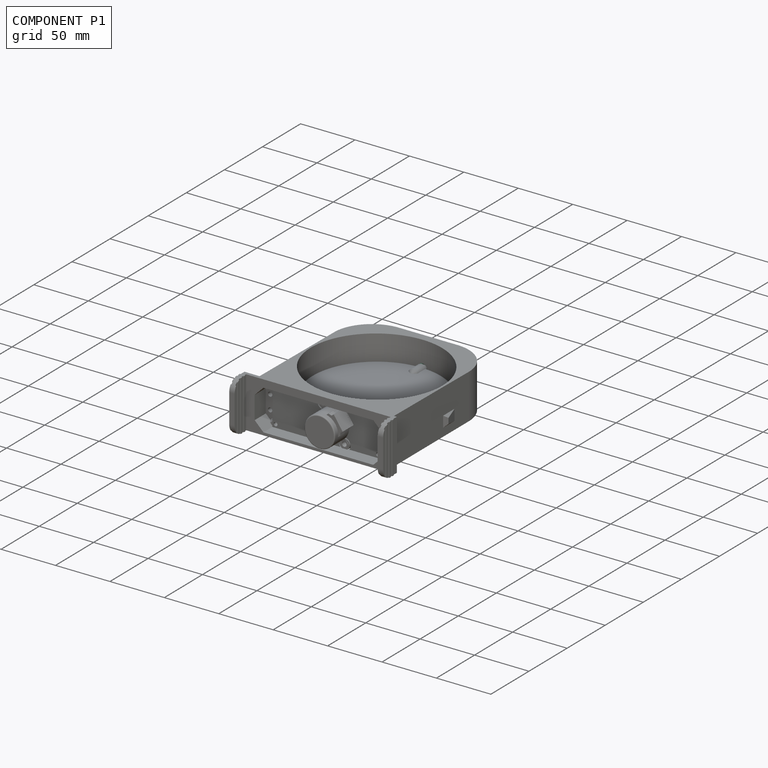
[diagram: component P1 — assembled]
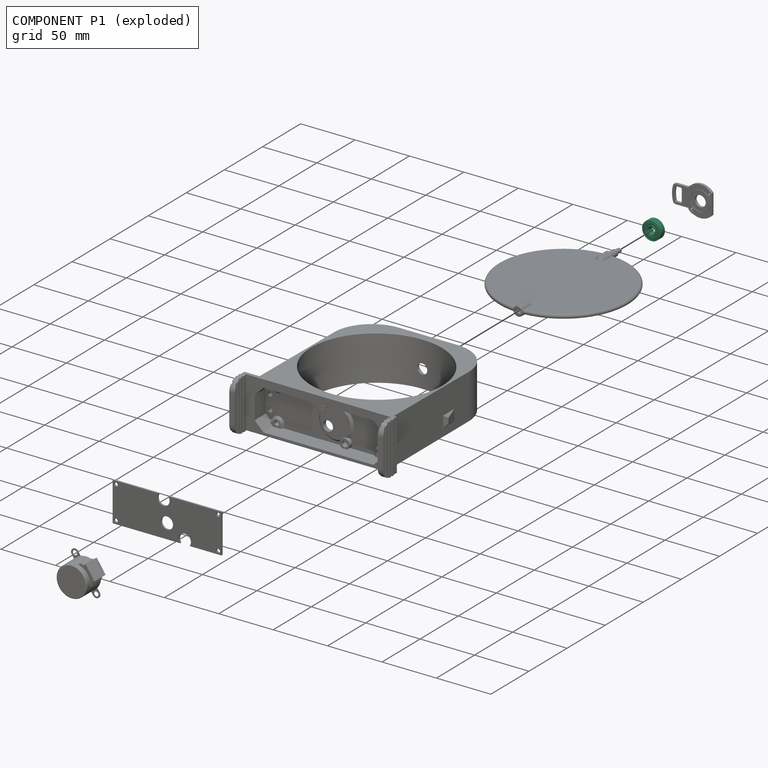
[diagram: component P1 — exploded]
COMPONENT P1 — recipe-attached ("606Bearing", a linked part whose construction recipe lives in a companion FreeCAD document of the same project; that document's serialized recipe follows).
Held by: resting contact with P0 (derived edge); resting contact with P3 (derived edge); resting contact with P4 (derived edge).
Construction recipe (the companion document, serialized — sketch geometry with constraints, then the solid features built on it; lengths are millimeters unless a unit is written):

FCSTD DOCUMENT  (FreeCAD 0.20R27936 (Git))
Label: 606Bearing
License: All rights reserved
LicenseURL: http://en.wikipedia.org/wiki/All_rights_reserved
objects: Sketcher::SketchObject×3, PartDesign::Pad×3, PartDesign::Chamfer×3, PartDesign::Body×3, Part::MultiFuse×1
note: 19 computed .brp shape members not serialized (recipe doc carries the construction recipe); baked Part::Feature solids carry a one-line shape summary decoded from their .brp

FEATURE [Sketcher::SketchObject] Sketch
  FullyConstrained = true
  MapMode = 5
  Support = -> [XY_Plane]
  sketch-geometry (2):
    g0: Circle CenterX=0 CenterY=0 CenterZ=0 NormalX=0 NormalY=0 NormalZ=1 AngleXU=0 Radius=7.4
    g1: Circle CenterX=0 CenterY=0 CenterZ=0 NormalX=0 NormalY=0 NormalZ=1 AngleXU=0 Radius=8.5
  constraints (4):
    c: Coincident(g0,g-1)
    c: Diameter(g0) = 14.8
    c: Coincident(g1,g0)
    c: Diameter(g1) = 17
FEATURE [PartDesign::Pad] Pad
  Direction = (0,0,1)
  Length = 6
  Length2 = 10
  Midplane = true
  Profile = -> Sketch
  ReferenceAxis = -> Sketch [N_Axis]
  Type = 0
FEATURE [Sketcher::SketchObject] Sketch001
  FullyConstrained = true
  MapMode = 5
  Support = -> [XY_Plane001]
  sketch-geometry (2):
    g0: Circle CenterX=0 CenterY=0 CenterZ=0 NormalX=0 NormalY=0 NormalZ=1 AngleXU=0 Radius=3
    g1: Circle CenterX=0 CenterY=0 CenterZ=0 NormalX=0 NormalY=0 NormalZ=1 AngleXU=0 Radius=4.5
  constraints (4):
    c: Coincident(g0,g-1)
    c: Coincident(g1,g0)
    c: Diameter(g0) = 6
    c: Diameter(g1) = 9
FEATURE [PartDesign::Pad] Pad001
  Direction = (0,0,1)
  Length = 6
  Length2 = 10
  Midplane = true
  Profile = -> Sketch001
  ReferenceAxis = -> Sketch001 [N_Axis]
  Type = 0
FEATURE [Sketcher::SketchObject] Sketch002
  FullyConstrained = true
  MapMode = 5
  Support = -> [XY_Plane002]
  sketch-geometry (2):
    g0: Circle CenterX=0 CenterY=0 CenterZ=0 NormalX=0 NormalY=0 NormalZ=1 AngleXU=0 Radius=4.5
    g1: Circle CenterX=0 CenterY=0 CenterZ=0 NormalX=0 NormalY=0 NormalZ=1 AngleXU=0 Radius=7.4
  constraints (4):
    c: Coincident(g0,g-1)
    c: Coincident(g1,g0)
    c: Diameter(g0) = 9
    c: Diameter(g1) = 14.8
FEATURE [PartDesign::Pad] Pad002
  Direction = (0,0,1)
  Length = 6
  Length2 = 10
  Midplane = true
  Profile = -> Sketch002
  ReferenceAxis = -> Sketch002 [N_Axis]
  Type = 0
FEATURE [PartDesign::Chamfer] Chamfer
  Angle = 45
  Base = -> Pad001 [Face4,Face3]
  BaseFeature = -> Pad001
  ChamferType = 0
  FlipDirection = false
  Size = 0.5
  Size2 = 1
  SupportTransform = false
  UseAllEdges = false
FEATURE [PartDesign::Body] Body001  label="InnerRace"
  Group = -> [Sketch001,Pad001,Chamfer]
  Origin = -> Origin001
  Tip = -> Chamfer
FEATURE [PartDesign::Chamfer] Chamfer001
  Angle = 45
  Base = -> Pad002 [Face3,Face4]
  BaseFeature = -> Pad002
  ChamferType = 0
  FlipDirection = false
  Size = 0.5
  Size2 = 1
  SupportTransform = false
  UseAllEdges = false
FEATURE [PartDesign::Body] Body002  label="Seal"
  Group = -> [Sketch002,Pad002,Chamfer001]
  Origin = -> Origin002
  Tip = -> Chamfer001
FEATURE [PartDesign::Chamfer] Chamfer002
  Angle = 45
  Base = -> Pad [Face1]
  BaseFeature = -> Pad
  ChamferType = 0
  FlipDirection = false
  Size = 0.2
  Size2 = 1
  SupportTransform = false
  UseAllEdges = false
FEATURE [PartDesign::Body] Body  label="OuterRace"
  Group = -> [Sketch,Pad,Chamfer002]
  Origin = -> Origin
  Tip = -> Chamfer002
FEATURE [Part::MultiFuse] Fusion
  Shapes = -> [Body,Body001,Body002]
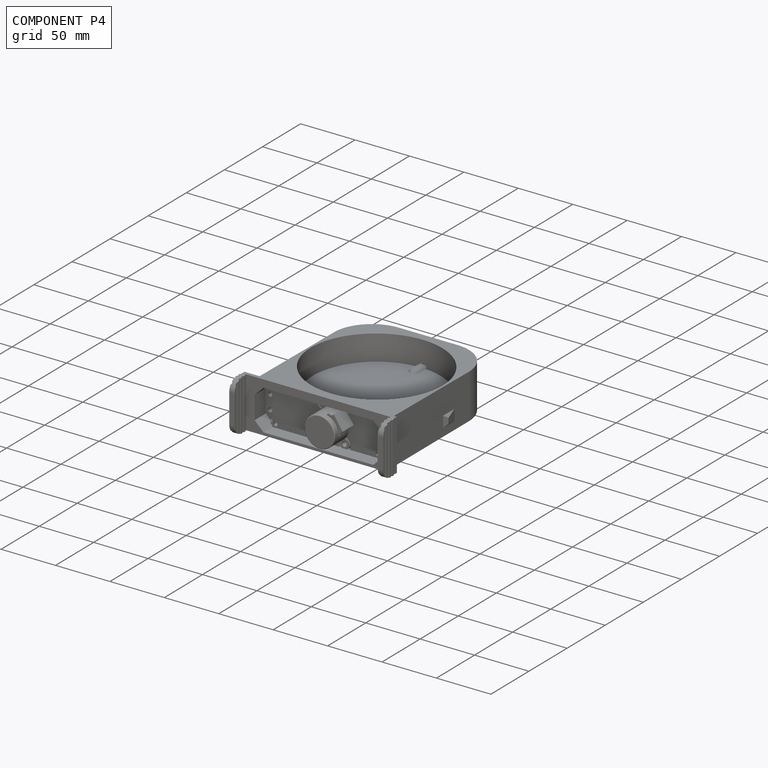
[diagram: component P4 — assembled]
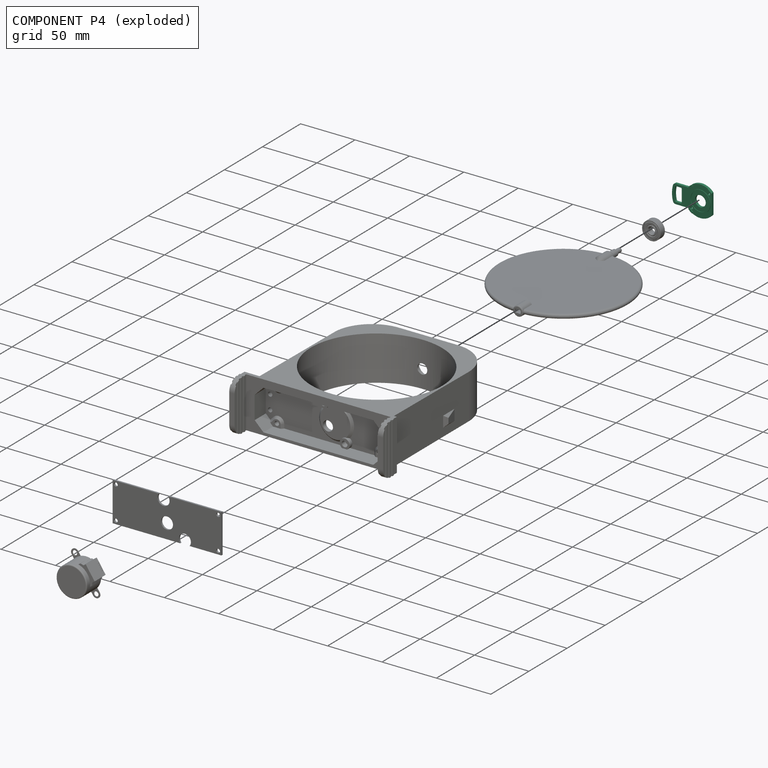
[diagram: component P4 — exploded]
COMPONENT P4 — recipe-attached ("FP01-WDK02", a linked part whose construction recipe lives in a companion FreeCAD document of the same project; that document's serialized recipe follows).
Held by: resting contact with P0 (derived edge); resting contact with P1 (derived edge); resting contact with P3 (derived edge).
Construction recipe (the companion document, serialized — sketch geometry with constraints, then the solid features built on it; lengths are millimeters unless a unit is written):

FCSTD DOCUMENT  (FreeCAD 0.20R27936 (Git))
Label: FP01-WDK02
License: All rights reserved
LicenseURL: http://en.wikipedia.org/wiki/All_rights_reserved
objects: Sketcher::SketchObject×4, PartDesign::Pad×3, PartDesign::Fillet×2, Part::Part2DObjectPython×1, PartDesign::Chamfer×1, PartDesign::Body×1, Part::Refine×1
note: 19 computed .brp shape members not serialized (recipe doc carries the construction recipe); baked Part::Feature solids carry a one-line shape summary decoded from their .brp

FEATURE [Sketcher::SketchObject] Sketch  label="Master Sketch"
  FullyConstrained = false
  sketch-geometry (26):
    g0: Circle CenterX=0 CenterY=0 CenterZ=0 NormalX=0 NormalY=0 NormalZ=1 AngleXU=0 Radius=14
    g1: Circle CenterX=0 CenterY=0 CenterZ=0 NormalX=0 NormalY=0 NormalZ=1 AngleXU=0 Radius=12.5
    g2: Circle CenterX=0 CenterY=0 CenterZ=0 NormalX=0 NormalY=0 NormalZ=1 AngleXU=0 Radius=9.6
    g3: Circle CenterX=0 CenterY=0 CenterZ=0 NormalX=0 NormalY=0 NormalZ=1 AngleXU=0 Radius=8.6
    g4: Circle CenterX=0 CenterY=0 CenterZ=0 NormalX=0 NormalY=0 NormalZ=1 AngleXU=0 Radius=5
    g5: Circle CenterX=0 CenterY=0 CenterZ=0 NormalX=0 NormalY=0 NormalZ=1 AngleXU=0 Radius=7.5
    g6: LineSegment StartX=-8.5 StartY=-11.1243 StartZ=0 EndX=-8.5 EndY=-24.5713 EndZ=0
    g7: LineSegment StartX=8.5 StartY=-24.5713 StartZ=0 EndX=8.5 EndY=-11.1243 EndZ=0
    g8: ArcOfCircle CenterX=0 CenterY=0 CenterZ=0 NormalX=0 NormalY=0 NormalZ=1 AngleXU=0 Radius=26 StartAngle=4.37934 EndAngle=5.04543
    g9: ArcOfCircle CenterX=0 CenterY=0 CenterZ=0 NormalX=0 NormalY=0 NormalZ=1 AngleXU=0 Radius=23.9 StartAngle=4.43695 EndAngle=4.98782
    g10: LineSegment StartX=-6.5 StartY=-22.9991 StartZ=0 EndX=-6.5 EndY=-17 EndZ=0
    g11: LineSegment StartX=-6.5 StartY=-17 StartZ=0 EndX=6.5 EndY=-17 EndZ=0
    g12: LineSegment StartX=6.5 StartY=-17 StartZ=0 EndX=6.5 EndY=-22.9991 EndZ=0
    g13: LineSegment StartX=-9.26013 StartY=10.5 StartZ=0 EndX=9.26013 EndY=10.5 EndZ=0
    g14: Circle CenterX=7.91958 CenterY=7.91961 CenterZ=0 NormalX=0 NormalY=0 NormalZ=1 AngleXU=0 Radius=1
    g15: Circle CenterX=-7.91958 CenterY=-7.91961 CenterZ=0 NormalX=0 NormalY=0 NormalZ=1 AngleXU=0 Radius=1
    g16: LineSegment StartX=0 StartY=0 StartZ=0 EndX=7.91958 EndY=7.91961 EndZ=0
    g17: LineSegment StartX=-12 StartY=7.2111 StartZ=0 EndX=0 EndY=-9e-16 EndZ=0
    g18: LineSegment StartX=0 StartY=0 StartZ=0 EndX=12 EndY=7.2111 EndZ=0
    g19: LineSegment StartX=0 StartY=0 StartZ=0 EndX=-12 EndY=-7.2111 EndZ=0
    g20: LineSegment StartX=0 StartY=0 StartZ=0 EndX=12 EndY=-7.2111 EndZ=0
    g21: LineSegment StartX=0 StartY=0 StartZ=0 EndX=9 EndY=-10.7238 EndZ=0
    g22: LineSegment StartX=0 StartY=0 StartZ=0 EndX=-9 EndY=-10.7238 EndZ=0
    g23: Circle CenterX=0 CenterY=0 CenterZ=0 NormalX=0 NormalY=0 NormalZ=1 AngleXU=0 Radius=6.8
    g24: LineSegment StartX=0 StartY=0 StartZ=0 EndX=-2.56515 EndY=-7.04769 EndZ=0
    g25: LineSegment StartX=0 StartY=0 StartZ=0 EndX=2.56515 EndY=-7.04769 EndZ=0
  constraints (64):
    c: Coincident(g0,g-1)
    c: Diameter(g0) = 28
    c: Coincident(g1,g0)
    c: Diameter(g1) = 25
    c: Coincident(g2,g0)
    c: Coincident(g3,g0)
    c: Diameter(g2) = 19.2
    c: Diameter(g3) = 17.2
    c: Coincident(g4,g0)
    c: Coincident(g5,g0)
    c: Diameter(g4) = 10
    c: Diameter(g5) = 15
    c: PointOnObject(g6,g0)
    c: Vertical(g6)
    c: PointOnObject(g7,g0)
    c: Vertical(g7)
    c: Equal(g6,g7)
    c: Coincident(g8,g0)
    c: Coincident(g8,g6)
    c: Coincident(g8,g7)
    c: Coincident(g9,g0)
    c: DistanceX(g6,g7) = 17
    c: Radius(g8) = 26
    c: Radius(g9) = 23.9
    c: Coincident(g10,g9)
    c: Vertical(g10)
    c: Coincident(g11,g10)
    c: Coincident(g12,g11)
    c: Coincident(g12,g9)
    c: Vertical(g12)
    c: Symmetric(g11,g10,g-2)
    c: DistanceX(g9,g9) = 13
    c: DistanceY(g10,g0) = 17
    c: PointOnObject(g13,g0)
    c: Horizontal(g13)
    c: PointOnObject(g13,g0)
    c: DistanceY(g0,g13) = 10.5
    c: Symmetric(g14,g15,g0)
    c: Equal(g14,g15)
    c: Diameter(g14) = 2
    c: Coincident(g16,g0)
    c: Coincident(g16,g14)
    c: Distance(g14,g15) = 22.4
    c: PointOnObject(g17,g0)
    c: Coincident(g17,g0)
    c: Coincident(g18,g0)
    c: Symmetric(g18,g17,g-2)
    c: Coincident(g19,g0)
    c: Coincident(g20,g0)
    c: Symmetric(g20,g18,g-1)
    c: Symmetric(g19,g17,g-1)
    c: Coincident(g21,g0)
    c: PointOnObject(g21,g0)
    c: Coincident(g22,g0)
    c: Symmetric(g21,g22,g-2)
    c: DistanceX(g22,g21) = 18
    c: DistanceX(g17,g18) = 24
    c: Coincident(g23,g0)
    c: Diameter(g23) = 13.6
    c: Coincident(g24,g0)
    c: PointOnObject(g24,g5)
    c: Coincident(g25,g0)
    c: Symmetric(g25,g24,g-2)
    c: Angle(g24,g25) = 0.698132
FEATURE [Part::Part2DObjectPython] Clone2D  label="Master Sketch (2D)"  # Draft 2D object (typed FeaturePython)
  Fuse = false
  Objects = -> [Sketch]
  Scale = (1,1,1)
FEATURE [Sketcher::SketchObject] Sketch001
  ExternalGeometry = -> [Clone2D]
  FullyConstrained = true
  MapMode = 5
  Support = -> [XY_Plane]
  sketch-geometry (13):
    g0: LineSegment StartX=-9.26013 StartY=10.5 StartZ=0 EndX=9.26013 EndY=10.5 EndZ=0
    g1: ArcOfCircle CenterX=0 CenterY=0 CenterZ=0 NormalX=0 NormalY=0 NormalZ=1 AngleXU=0 Radius=14 StartAngle=2.29353 EndAngle=4.05993
    g2: ArcOfCircle CenterX=0 CenterY=0 CenterZ=0 NormalX=0 NormalY=0 NormalZ=1 AngleXU=0 Radius=14 StartAngle=5.36485 EndAngle=7.13125
    g3: LineSegment StartX=-8.5 StartY=-11.1243 StartZ=0 EndX=-8.5 EndY=-24.5713 EndZ=0
    g4: LineSegment StartX=8.5 StartY=-24.5713 StartZ=0 EndX=8.5 EndY=-11.1243 EndZ=0
    g5: ArcOfCircle CenterX=0 CenterY=0 CenterZ=0 NormalX=0 NormalY=0 NormalZ=1 AngleXU=0 Radius=26 StartAngle=4.37934 EndAngle=5.04543
    g6: ArcOfCircle CenterX=0 CenterY=0 CenterZ=0 NormalX=0 NormalY=0 NormalZ=1 AngleXU=0 Radius=23.9 StartAngle=4.43695 EndAngle=4.98782
    g7: LineSegment StartX=-6.5 StartY=-22.9991 StartZ=0 EndX=-6.5 EndY=-17 EndZ=0
    g8: LineSegment StartX=-6.5 StartY=-17 StartZ=0 EndX=6.5 EndY=-17 EndZ=0
    g9: LineSegment StartX=6.5 StartY=-17 StartZ=0 EndX=6.5 EndY=-22.9991 EndZ=0
    g10: Circle CenterX=0 CenterY=0 CenterZ=0 NormalX=0 NormalY=0 NormalZ=1 AngleXU=0 Radius=5
    g11: Circle CenterX=7.91958 CenterY=7.91961 CenterZ=0 NormalX=0 NormalY=0 NormalZ=1 AngleXU=0 Radius=1
    g12: Circle CenterX=-7.91958 CenterY=-7.91961 CenterZ=0 NormalX=0 NormalY=0 NormalZ=1 AngleXU=0 Radius=1
  constraints (30):
    c: Coincident(g0,g-3)
    c: Coincident(g0,g-3)
    c: Coincident(g1,g-1)
    c: Coincident(g1,g-4)
    c: Coincident(g1,g0)
    c: Coincident(g2,g1)
    c: Coincident(g2,g-5)
    c: Coincident(g2,g0)
    c: Coincident(g3,g1)
    c: Coincident(g3,g-4)
    c: Coincident(g4,g-5)
    c: Coincident(g4,g2)
    c: Coincident(g5,g1)
    c: Coincident(g5,g4)
    c: Coincident(g5,g3)
    c: Coincident(g6,g1)
    c: Coincident(g6,g-6)
    c: Coincident(g6,g-7)
    c: Coincident(g7,g6)
    c: Coincident(g7,g-7)
    c: Coincident(g8,g7)
    c: Coincident(g8,g-6)
    c: Coincident(g9,g8)
    c: Coincident(g9,g6)
    c: Coincident(g10,g1)
    c: Equal(g10,g-8)
    c: Coincident(g11,g-9)
    c: Equal(g-9,g11)
    c: Coincident(g12,g-10)
    c: Equal(g-10,g12)
FEATURE [PartDesign::Pad] Pad
  Direction = (0,0,1)
  Length = 2.3
  Length2 = 10
  Profile = -> Sketch001
  ReferenceAxis = -> Sketch001 [N_Axis]
  Reversed = true
  Type = 0
FEATURE [Sketcher::SketchObject] Sketch002
  ExternalGeometry = -> [Clone2D]
  FullyConstrained = true
  MapMode = 5
  Support = -> [XY_Plane]
  sketch-geometry (18):
    g0: ArcOfCircle CenterX=0 CenterY=0 CenterZ=0 NormalX=0 NormalY=0 NormalZ=1 AngleXU=0 Radius=14 StartAngle=2.29353 EndAngle=2.60049
    g1: ArcOfCircle CenterX=0 CenterY=0 CenterZ=0 NormalX=0 NormalY=0 NormalZ=1 AngleXU=0 Radius=14 StartAngle=0.5411 EndAngle=0.848062
    g2: ArcOfCircle CenterX=0 CenterY=0 CenterZ=0 NormalX=0 NormalY=0 NormalZ=1 AngleXU=0 Radius=12.5 StartAngle=2.14431 EndAngle=2.60049
    g3: ArcOfCircle CenterX=0 CenterY=0 CenterZ=0 NormalX=0 NormalY=0 NormalZ=1 AngleXU=0 Radius=12.5 StartAngle=0.5411 EndAngle=0.997283
    g4: LineSegment StartX=-9.26013 StartY=10.5 StartZ=0 EndX=-6.78233 EndY=10.5 EndZ=0
    g5: LineSegment StartX=-12 StartY=7.2111 StartZ=0 EndX=-10.7143 EndY=6.43848 EndZ=0
    g6: LineSegment StartX=6.78233 StartY=10.5 StartZ=0 EndX=9.26013 EndY=10.5 EndZ=0
    g7: LineSegment StartX=12 StartY=7.2111 StartZ=0 EndX=10.7143 EndY=6.43848 EndZ=0
    g8: Circle CenterX=0 CenterY=0 CenterZ=0 NormalX=0 NormalY=0 NormalZ=1 AngleXU=0 Radius=9.6
    g9: Circle CenterX=0 CenterY=0 CenterZ=0 NormalX=0 NormalY=0 NormalZ=1 AngleXU=0 Radius=8.6
    g10: ArcOfCircle CenterX=0 CenterY=0 CenterZ=0 NormalX=0 NormalY=0 NormalZ=1 AngleXU=0 Radius=14 StartAngle=5.41061 EndAngle=5.74209
    g11: ArcOfCircle CenterX=0 CenterY=0 CenterZ=0 NormalX=0 NormalY=0 NormalZ=1 AngleXU=0 Radius=14 StartAngle=3.68269 EndAngle=4.01417
    g12: ArcOfCircle CenterX=0 CenterY=0 CenterZ=0 NormalX=0 NormalY=0 NormalZ=1 AngleXU=0 Radius=12.5 StartAngle=3.68269 EndAngle=4.01417
    g13: ArcOfCircle CenterX=0 CenterY=0 CenterZ=0 NormalX=0 NormalY=0 NormalZ=1 AngleXU=0 Radius=12.5 StartAngle=5.41061 EndAngle=5.74209
    g14: LineSegment StartX=-12 StartY=-7.2111 StartZ=0 EndX=-10.7143 EndY=-6.43848 EndZ=0
    g15: LineSegment StartX=-9 StartY=-10.7238 StartZ=0 EndX=-8.03571 EndY=-9.57483 EndZ=0
    g16: LineSegment StartX=8.03571 StartY=-9.57483 StartZ=0 EndX=9 EndY=-10.7238 EndZ=0
    g17: LineSegment StartX=10.7143 StartY=-6.43848 StartZ=0 EndX=12 EndY=-7.2111 EndZ=0
  constraints (48):
    c: Coincident(g0,g-13)
    c: Coincident(g0,g-11)
    c: Coincident(g0,g-5)
    c: Coincident(g1,g0)
    c: Coincident(g1,g-5)
    c: Coincident(g1,g-6)
    c: Coincident(g2,g0)
    c: PointOnObject(g2,g-4)
    c: PointOnObject(g2,g-5)
    c: PointOnObject(g2,g-11)
    c: Coincident(g3,g0)
    c: PointOnObject(g3,g-6)
    c: PointOnObject(g3,g-4)
    c: PointOnObject(g3,g-5)
    c: Coincident(g4,g0)
    c: Coincident(g4,g2)
    c: Coincident(g5,g0)
    c: Coincident(g5,g2)
    c: Coincident(g6,g3)
    c: Coincident(g6,g1)
    c: Coincident(g7,g1)
    c: Coincident(g7,g3)
    c: Coincident(g8,g0)
    c: Coincident(g9,g0)
    c: Equal(g9,g-13)
    c: Equal(g-12,g8)
    c: Coincident(g10,g0)
    c: Coincident(g10,g-8)
    c: Coincident(g10,g-7)
    c: Coincident(g11,g0)
    c: Coincident(g11,g-10)
    c: Coincident(g11,g-9)
    c: Coincident(g12,g0)
    c: PointOnObject(g12,g-4)
    c: PointOnObject(g12,g-9)
    c: Coincident(g13,g0)
    c: PointOnObject(g13,g-8)
    c: PointOnObject(g13,g-4)
    c: PointOnObject(g13,g-7)
    c: PointOnObject(g12,g-10)
    c: Coincident(g14,g11)
    c: Coincident(g14,g12)
    c: Coincident(g15,g11)
    c: Coincident(g15,g12)
    c: Coincident(g16,g13)
    c: Coincident(g16,g10)
    c: Coincident(g17,g13)
    c: Coincident(g17,g10)
FEATURE [PartDesign::Pad] Pad001
  BaseFeature = -> Pad
  Direction = (0,0,1)
  Length = 2.8
  Length2 = 10
  Profile = -> Sketch002
  ReferenceAxis = -> Sketch002 [N_Axis]
  Reversed = true
  Type = 0
FEATURE [Sketcher::SketchObject] Sketch003
  ExternalGeometry = -> [Clone2D]
  FullyConstrained = true
  MapMode = 5
  Support = -> [XY_Plane]
  sketch-geometry (4):
    g0: ArcOfCircle CenterX=0 CenterY=0 CenterZ=0 NormalX=0 NormalY=0 NormalZ=1 AngleXU=0 Radius=7.5 StartAngle=5.06145 EndAngle=10.6465
    g1: ArcOfCircle CenterX=0 CenterY=0 CenterZ=0 NormalX=0 NormalY=0 NormalZ=1 AngleXU=0 Radius=6.8 StartAngle=5.06145 EndAngle=10.6465
    g2: LineSegment StartX=-2.56515 StartY=-7.04769 StartZ=0 EndX=-2.32574 EndY=-6.38991 EndZ=0
    g3: LineSegment StartX=2.56515 StartY=-7.04769 StartZ=0 EndX=2.32574 EndY=-6.38991 EndZ=0
  constraints (11):
    c: Coincident(g0,g-6)
    c: Coincident(g0,g-6)
    c: Coincident(g0,g-5)
    c: Coincident(g1,g0)
    c: PointOnObject(g1,g-4)
    c: PointOnObject(g1,g-5)
    c: PointOnObject(g1,g-6)
    c: Coincident(g2,g0)
    c: Coincident(g2,g1)
    c: Coincident(g3,g0)
    c: Coincident(g3,g1)
FEATURE [PartDesign::Pad] Pad002
  BaseFeature = -> Pad001
  Direction = (0,0,1)
  Length = 2.3
  Length2 = 10
  Profile = -> Sketch003
  ReferenceAxis = -> Sketch003 [N_Axis]
  Type = 0
FEATURE [PartDesign::Fillet] Fillet
  Base = -> Pad002 [Edge78,Edge77]
  BaseFeature = -> Pad002
  Radius = 2.5
  SupportTransform = false
  UseAllEdges = false
FEATURE [PartDesign::Fillet] Fillet001
  Base = -> Fillet [Edge63,Edge65,Edge60,Edge61]
  BaseFeature = -> Fillet
  Radius = 1
  SupportTransform = false
  UseAllEdges = false
FEATURE [PartDesign::Chamfer] Chamfer
  Angle = 45
  Base = -> Fillet001 [Edge29,Edge31]
  BaseFeature = -> Fillet001
  ChamferType = 0
  FlipDirection = false
  Size = 0.5
  Size2 = 1
  SupportTransform = false
  UseAllEdges = false
FEATURE [PartDesign::Body] Body
  Group = -> [Clone2D,Sketch001,Pad,Sketch002,Pad001,Sketch003,Pad002,Fillet,Fillet001,Chamfer]
  Origin = -> Origin
  Tip = -> Chamfer
FEATURE [Part::Refine] Body001  label="FP01-WDK02"
  Source = -> Body
PROVENANCE & LICENSES
Assembly and component geometry: a FreeCAD (.FCStd) document from a public repository crawl; components, placements and joints were extracted with FreeCAD and each solid tessellated.
Construction recipes: the document's own serialized feature recipes (and, for linked parts, the recipes of companion documents from the same project).
License: as declared in the source repository (recorded in the dataset sidecar).
Joints: native FreeCAD joints and A2plus constraints are mapped to standard mate types; edges marked 'derived from contact' connect touching components and are measured from the geometry, not modeled.
Verification: 3 of this assembly's 6 components carry a construction recipe (3 from linked companion documents in the same project); the rest are geometry-only. Every component's tessellation passed the extraction mesh gates (mesh-volume checksum against the B-rep where available, bounding-box inflation <= 2%).
Renders: orthographic iso camera (az 35 / el 25); the floor grid conveys scale (grid pitch printed in each image; no ruler). In the exploded view each component is displaced by its stored offset vector: the offsets alone carry the explosion direction (mate normal/axis signs are not orientation cues and do not encode it), and separation distances are assigned per mate-chain, not proportionally to assembly-order depth.
